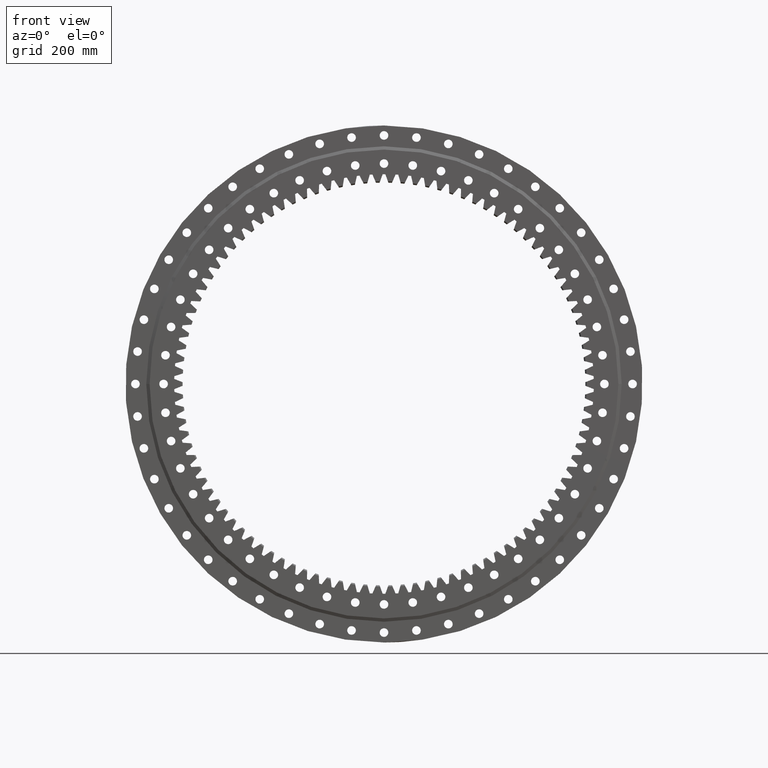
[diagram: clean part render]
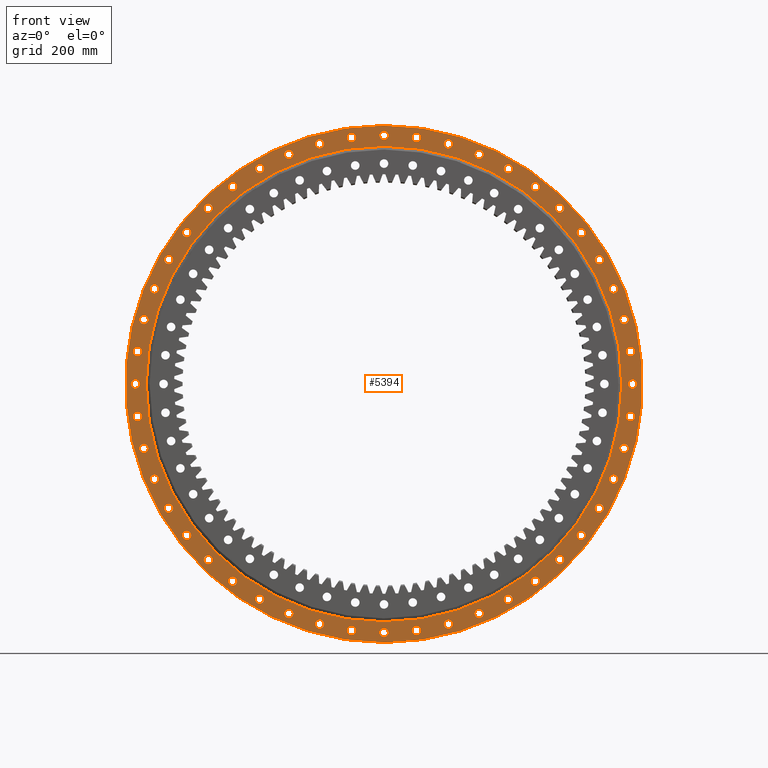
[diagram: same view with one face highlighted and labeled with its STEP entity id]
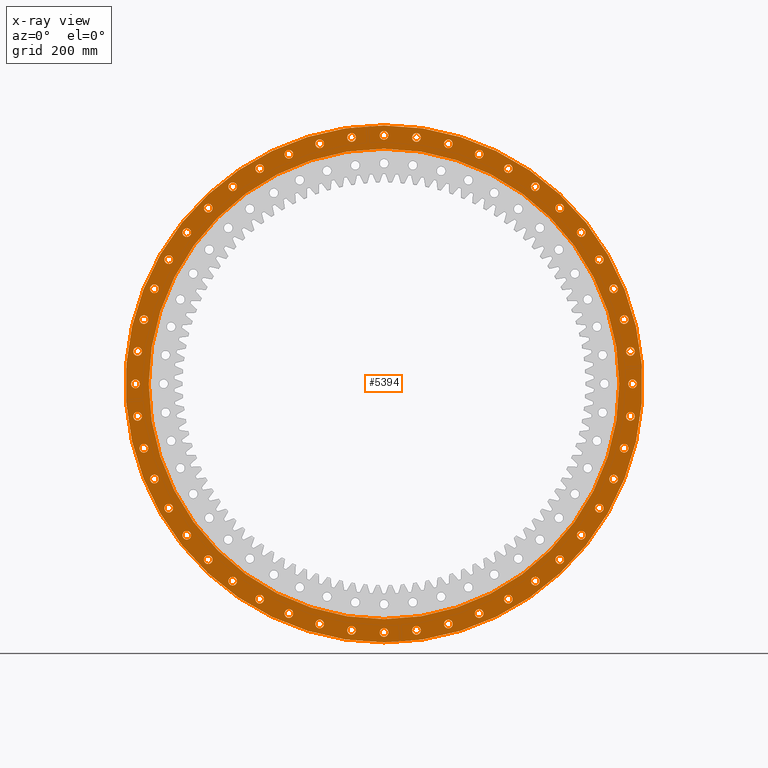
[diagram: x-ray of the same camera — body ghosted, the highlighted face saturated]
A machine part, front view. The second image highlights one B-rep face of the part: STEP entity #5394.
The next image is the same camera in x-ray: the body ghosted, the highlighted face saturated — about 0% of this face is hidden behind the body in this view.
In plain terms, the highlighted planar face has unit normal (-0, 1, 0).
Its self-contained STEP definition (entity closure, byte-faithful):
#33 = DIRECTION ( 'NONE',  ( 1.173697223544192200E-016, -1.000000000000000000, -3.494217355385783800E-017 ) ) ;
#45 = EDGE_LOOP ( 'NONE', ( #16290, #17544 ) ) ;
#139 = CARTESIAN_POINT ( 'NONE',  ( 649.5190528383327500, -39.99999999999975100, -374.9999999999936900 ) ) ;
#201 = EDGE_CURVE ( 'NONE', #11603, #12602, #30120, .T. ) ;
#226 = CARTESIAN_POINT ( 'NONE',  ( -287.0125742738179600, -39.99999999999989300, 705.9096493834647400 ) ) ;
#231 = ORIENTED_EDGE ( 'NONE', *, *, #1069, .F. ) ;
#430 = DIRECTION ( 'NONE',  ( 0.8660254037844354900, 0.0000000000000000000, -0.5000000000000054400 ) ) ;
#480 = CIRCLE ( 'NONE', #14812, 13.00000000000006000 ) ;
#487 = EDGE_CURVE ( 'NONE', #23903, #22460, #22780, .T. ) ;
#511 = FACE_BOUND ( 'NONE', #22450, .T. ) ;
#587 = CIRCLE ( 'NONE', #11814, 13.00000000000001100 ) ;
#600 = DIRECTION ( 'NONE',  ( -0.6087614290087257600, 0.0000000000000000000, -0.7933533402912312800 ) ) ;
#608 = VERTEX_POINT ( 'NONE', #23610 ) ;
#651 = VERTEX_POINT ( 'NONE', #23520 ) ;
#709 = CARTESIAN_POINT ( 'NONE',  ( 374.9999999999913600, -39.99999999999982200, 636.5190528383340100 ) ) ;
#737 = ORIENTED_EDGE ( 'NONE', *, *, #26128, .F. ) ;
#748 = DIRECTION ( 'NONE',  ( 1.000000000000000000, 0.0000000000000000000, -3.546992490074405800E-015 ) ) ;
#815 = DIRECTION ( 'NONE',  ( 1.173697223544192200E-016, -1.000000000000000000, -3.494217355385783800E-017 ) ) ;
#828 = AXIS2_PLACEMENT_3D ( 'NONE', #16413, #16360, #16272 ) ;
#853 = CARTESIAN_POINT ( 'NONE',  ( -543.3300858899075400, -39.99999999999988600, -530.3300858899137900 ) ) ;
#869 = DIRECTION ( 'NONE',  ( 1.173697223544192200E-016, -1.000000000000000000, -3.494217355385783800E-017 ) ) ;
#876 = CARTESIAN_POINT ( 'NONE',  ( -456.5710717565368700, -39.99999999999987900, -595.0150052184292200 ) ) ;
#884 = CARTESIAN_POINT ( 'NONE',  ( -97.89464416503329900, -39.99999999999982900, -730.5836460303585200 ) ) ;
#898 = CIRCLE ( 'NONE', #17446, 12.99999999999996800 ) ;
#905 = EDGE_LOOP ( 'NONE', ( #13851, #14314 ) ) ;
#907 = CIRCLE ( 'NONE', #7056, 12.99999999999995400 ) ;
#919 = VERTEX_POINT ( 'NONE', #17793 ) ;
#923 = EDGE_LOOP ( 'NONE', ( #25007, #25901 ) ) ;
#947 = DIRECTION ( 'NONE',  ( 1.173697223544192200E-016, -1.000000000000000000, -3.494217355385783800E-017 ) ) ;
#959 = VERTEX_POINT ( 'NONE', #16744 ) ;
#985 = AXIS2_PLACEMENT_3D ( 'NONE', #1483, #1456, #1449 ) ;
#1016 = CARTESIAN_POINT ( 'NONE',  ( 287.0125742738079600, -39.99999999999982900, 692.9096493834691700 ) ) ;
#1059 = CARTESIAN_POINT ( 'NONE',  ( 750.0000000000000000, -39.99999999999975100, 8.274054738059845500E-012 ) ) ;
#1069 = EDGE_CURVE ( 'NONE', #7880, #24158, #27505, .T. ) ;
#1077 = CARTESIAN_POINT ( 'NONE',  ( 456.5710717565327200, -39.99999999999980800, 608.0150052184324100 ) ) ;
#1084 = VERTEX_POINT ( 'NONE', #14482 ) ;
#1146 = AXIS2_PLACEMENT_3D ( 'NONE', #1820, #1302, #1219 ) ;
#1153 = CARTESIAN_POINT ( 'NONE',  ( 287.0125742738079600, -39.99999999999982900, 679.9096493834691700 ) ) ;
#1198 = ORIENTED_EDGE ( 'NONE', *, *, #27693, .F. ) ;
#1219 = DIRECTION ( 'NONE',  ( -0.9659258262890707500, 0.0000000000000000000, -0.2588190451025111900 ) ) ;
#1244 = ORIENTED_EDGE ( 'NONE', *, *, #30079, .F. ) ;
#1256 = EDGE_CURVE ( 'NONE', #23893, #4929, #4859, .T. ) ;
#1269 = FACE_BOUND ( 'NONE', #9902, .T. ) ;
#1272 = EDGE_LOOP ( 'NONE', ( #14979, #16435 ) ) ;
#1302 = DIRECTION ( 'NONE',  ( 1.173697223544192200E-016, -1.000000000000000000, -3.494217355385783800E-017 ) ) ;
#1344 = AXIS2_PLACEMENT_3D ( 'NONE', #139, #33, #430 ) ;
#1449 = DIRECTION ( 'NONE',  ( -0.2588190451025071900, 0.0000000000000000000, 0.9659258262890718600 ) ) ;
#1456 = DIRECTION ( 'NONE',  ( 1.173697223544192200E-016, -1.000000000000000000, -3.494217355385783800E-017 ) ) ;
#1483 = CARTESIAN_POINT ( 'NONE',  ( -194.1142838268914400, -39.99999999999988600, 724.4443697168010200 ) ) ;
#1516 = CIRCLE ( 'NONE', #13679, 13.00000000000005700 ) ;
#1522 = CIRCLE ( 'NONE', #1146, 13.00000000000000700 ) ;
#1617 = CARTESIAN_POINT ( 'NONE',  ( -582.0150052184236500, -39.99999999999989300, -456.5710717565440300 ) ) ;
#1648 = CARTESIAN_POINT ( 'NONE',  ( -97.89464416503329900, -39.99999999999982900, -756.5836460303585200 ) ) ;
#1663 = CIRCLE ( 'NONE', #3891, 13.00000000000002100 ) ;
#1666 = CARTESIAN_POINT ( 'NONE',  ( -374.9999999999959100, -39.99999999999986500, -662.5190528383313900 ) ) ;
#1667 = EDGE_CURVE ( 'NONE', #27989, #28717, #3036, .T. ) ;
#1714 = VERTEX_POINT ( 'NONE', #4193 ) ;
#1723 = EDGE_LOOP ( 'NONE', ( #8211, #6127 ) ) ;
#1779 = VERTEX_POINT ( 'NONE', #1889 ) ;
#1787 = VERTEX_POINT ( 'NONE', #1666 ) ;
#1806 = VERTEX_POINT ( 'NONE', #1153 ) ;
#1820 = CARTESIAN_POINT ( 'NONE',  ( -724.4443697168003400, -39.99999999999991500, -194.1142838268939400 ) ) ;
#1838 = DIRECTION ( 'NONE',  ( -0.3826834323650789000, 0.0000000000000000000, 0.9238795325112911800 ) ) ;
#1889 = CARTESIAN_POINT ( 'NONE',  ( 456.5710717565457900, -39.99999999999976600, -582.0150052184221700 ) ) ;
#1891 = CIRCLE ( 'NONE', #10191, 12.99999999999999300 ) ;
#2017 = FACE_BOUND ( 'NONE', #16293, .T. ) ;
#2058 = VERTEX_POINT ( 'NONE', #22474 ) ;
#2137 = VERTEX_POINT ( 'NONE', #14539 ) ;
#2165 = AXIS2_PLACEMENT_3D ( 'NONE', #22158, #22116, #22097 ) ;
#2181 = CIRCLE ( 'NONE', #21957, 13.00000000000004400 ) ;
#2183 = DIRECTION ( 'NONE',  ( 1.173697223544192200E-016, -1.000000000000000000, -3.494217355385783800E-017 ) ) ;
#2186 = VERTEX_POINT ( 'NONE', #12928 ) ;
#2222 = VERTEX_POINT ( 'NONE', #10562 ) ;
#2286 = CIRCLE ( 'NONE', #21154, 12.99999999999996400 ) ;
#2295 = CARTESIAN_POINT ( 'NONE',  ( -608.0150052184236500, -39.99999999999989300, -456.5710717565440300 ) ) ;
#2310 = CARTESIAN_POINT ( 'NONE',  ( -287.0125742738179600, -39.99999999999989300, 692.9096493834647400 ) ) ;
#2323 = EDGE_CURVE ( 'NONE', #27451, #2222, #2603, .T. ) ;
#2377 = FACE_BOUND ( 'NONE', #7462, .T. ) ;
#2424 = CARTESIAN_POINT ( 'NONE',  ( -517.3300858899074200, -39.99999999999988600, -530.3300858899137900 ) ) ;
#2484 = EDGE_CURVE ( 'NONE', #8754, #9350, #17930, .T. ) ;
#2508 = EDGE_CURVE ( 'NONE', #12602, #11603, #23407, .T. ) ;
#2518 = DIRECTION ( 'NONE',  ( 1.000000000000000000, 0.0000000000000000000, -3.546992490074405800E-015 ) ) ;
#2572 = CARTESIAN_POINT ( 'NONE',  ( 750.0000000000000000, -39.99999999999975100, 8.274054738059845500E-012 ) ) ;
#2603 = CIRCLE ( 'NONE', #11756, 12.99999999999998000 ) ;
#2654 = EDGE_CURVE ( 'NONE', #18483, #12143, #25941, .T. ) ;
#2686 = EDGE_LOOP ( 'NONE', ( #22174, #22980 ) ) ;
#2739 = EDGE_LOOP ( 'NONE', ( #9683, #10281 ) ) ;
#2747 = EDGE_CURVE ( 'NONE', #20562, #27934, #22292, .T. ) ;
#2770 = DIRECTION ( 'NONE',  ( -0.7071067811865561200, 0.0000000000000000000, -0.7071067811865390200 ) ) ;
#2778 = EDGE_LOOP ( 'NONE', ( #30699, #231 ) ) ;
#2802 = DIRECTION ( 'NONE',  ( -0.7933533402912292800, 0.0000000000000000000, 0.6087614290087284300 ) ) ;
#2807 = DIRECTION ( 'NONE',  ( 1.173697223544192200E-016, -1.000000000000000000, -3.494217355385783800E-017 ) ) ;
#2828 = CARTESIAN_POINT ( 'NONE',  ( 287.0125742738231300, -39.99999999999978700, -679.9096493834625800 ) ) ;
#2833 = CARTESIAN_POINT ( 'NONE',  ( -530.3300858899075400, -39.99999999999988600, -530.3300858899137900 ) ) ;
#2837 = DIRECTION ( 'NONE',  ( 1.173697223544192200E-016, -1.000000000000000000, -3.494217355385783800E-017 ) ) ;
#2857 = CARTESIAN_POINT ( 'NONE',  ( -595.0150052184275200, -39.99999999999992200, 456.5710717565392500 ) ) ;
#2886 = CARTESIAN_POINT ( 'NONE',  ( -287.0125742738127300, -39.99999999999985800, -705.9096493834670100 ) ) ;
#2950 = DIRECTION ( 'NONE',  ( -0.9914448613738118300, 0.0000000000000000000, -0.1305261922200413900 ) ) ;
#2952 = DIRECTION ( 'NONE',  ( 1.173697223544192200E-016, -1.000000000000000000, -3.494217355385783800E-017 ) ) ;
#2953 = AXIS2_PLACEMENT_3D ( 'NONE', #12867, #12802, #12772 ) ;
#2980 = CARTESIAN_POINT ( 'NONE',  ( -743.5836460303572700, -39.99999999999992900, -97.89464416504226600 ) ) ;
#2987 = ORIENTED_EDGE ( 'NONE', *, *, #26257, .F. ) ;
#3036 = CIRCLE ( 'NONE', #26137, 13.00000000000002000 ) ;
#3064 = DIRECTION ( 'NONE',  ( 0.6087614290087231000, 0.0000000000000000000, 0.7933533402912332800 ) ) ;
#3104 = VERTEX_POINT ( 'NONE', #17784 ) ;
#3136 = AXIS2_PLACEMENT_3D ( 'NONE', #9209, #9105, #9004 ) ;
#3137 = AXIS2_PLACEMENT_3D ( 'NONE', #19658, #19565, #19363 ) ;
#3148 = AXIS2_PLACEMENT_3D ( 'NONE', #28964, #28938, #28932 ) ;
#3152 = FACE_BOUND ( 'NONE', #26608, .T. ) ;
#3154 = VERTEX_POINT ( 'NONE', #16870 ) ;
#3162 = VERTEX_POINT ( 'NONE', #17884 ) ;
#3181 = CARTESIAN_POINT ( 'NONE',  ( 194.1142838268965000, -39.99999999999979400, -737.4443697167997700 ) ) ;
#3184 = DIRECTION ( 'NONE',  ( 1.173697223544192200E-016, -1.000000000000000000, -3.494217355385783800E-017 ) ) ;
#3192 = AXIS2_PLACEMENT_3D ( 'NONE', #18816, #18752, #18605 ) ;
#3390 = CARTESIAN_POINT ( 'NONE',  ( 456.5710717565327200, -39.99999999999980800, 595.0150052184324100 ) ) ;
#3392 = AXIS2_PLACEMENT_3D ( 'NONE', #11721, #11624, #10903 ) ;
#3404 = ORIENTED_EDGE ( 'NONE', *, *, #15289, .F. ) ;
#3450 = VERTEX_POINT ( 'NONE', #11238 ) ;
#3490 = EDGE_LOOP ( 'NONE', ( #5351, #7254 ) ) ;
#3501 = EDGE_LOOP ( 'NONE', ( #21984, #22424 ) ) ;
#3505 = DIRECTION ( 'NONE',  ( 0.6087614290087231000, 0.0000000000000000000, 0.7933533402912332800 ) ) ;
#3506 = DIRECTION ( 'NONE',  ( 0.9659258262890693100, 0.0000000000000000000, 0.2588190451025171900 ) ) ;
#3606 = DIRECTION ( 'NONE',  ( 1.173697223544192200E-016, -1.000000000000000000, -3.494217355385783800E-017 ) ) ;
#3607 = DIRECTION ( 'NONE',  ( 1.173697223544192200E-016, -1.000000000000000000, -3.494217355385783800E-017 ) ) ;
#3612 = CARTESIAN_POINT ( 'NONE',  ( 724.4443697167990900, -39.99999999999976600, 194.1142838268990300 ) ) ;
#3648 = CARTESIAN_POINT ( 'NONE',  ( 287.0125742738231300, -39.99999999999978700, -705.9096493834625800 ) ) ;
#3662 = ORIENTED_EDGE ( 'NONE', *, *, #11509, .F. ) ;
#3696 = CIRCLE ( 'NONE', #18559, 13.00000000000003600 ) ;
#3710 = CARTESIAN_POINT ( 'NONE',  ( 456.5710717565327200, -39.99999999999980800, 595.0150052184324100 ) ) ;
#3831 = CARTESIAN_POINT ( 'NONE',  ( 5.653940886452980100E-012, -39.99999999999981500, -763.0000000000000000 ) ) ;
#3873 = FACE_BOUND ( 'NONE', #2778, .T. ) ;
#3877 = EDGE_LOOP ( 'NONE', ( #19130, #19887 ) ) ;
#3889 = AXIS2_PLACEMENT_3D ( 'NONE', #12525, #12481, #12464 ) ;
#3891 = AXIS2_PLACEMENT_3D ( 'NONE', #17160, #17138, #17129 ) ;
#3922 = EDGE_CURVE ( 'NONE', #6979, #7012, #20385, .T. ) ;
#3937 = CIRCLE ( 'NONE', #23851, 13.00000000000001100 ) ;
#3950 = AXIS2_PLACEMENT_3D ( 'NONE', #27063, #27296, #27462 ) ;
#3987 = CARTESIAN_POINT ( 'NONE',  ( 743.5836460303588600, -39.99999999999975100, -97.89464416503071200 ) ) ;
#4033 = VERTEX_POINT ( 'NONE', #1617 ) ;
#4034 = DIRECTION ( 'NONE',  ( -0.1305261922200382200, 0.0000000000000000000, 0.9914448613738121600 ) ) ;
#4059 = DIRECTION ( 'NONE',  ( 1.173697223544192200E-016, -1.000000000000000000, -3.494217355385783800E-017 ) ) ;
#4063 = CARTESIAN_POINT ( 'NONE',  ( 97.89464416502811200, -39.99999999999985800, 730.5836460303592000 ) ) ;
#4089 = DIRECTION ( 'NONE',  ( -0.9659258262890654300, 0.0000000000000000000, 0.2588190451025313400 ) ) ;
#4095 = CIRCLE ( 'NONE', #21708, 12.99999999999997500 ) ;
#4096 = CARTESIAN_POINT ( 'NONE',  ( -97.89464416503965100, -39.99999999999988600, 743.5836460303576100 ) ) ;
#4115 = AXIS2_PLACEMENT_3D ( 'NONE', #24539, #24516, #24512 ) ;
#4116 = ORIENTED_EDGE ( 'NONE', *, *, #10531, .F. ) ;
#4117 = DIRECTION ( 'NONE',  ( 1.173697223544192200E-016, -1.000000000000000000, -3.494217355385783800E-017 ) ) ;
#4193 = CARTESIAN_POINT ( 'NONE',  ( 456.5710717565457900, -39.99999999999976600, -608.0150052184221700 ) ) ;
#4258 = DIRECTION ( 'NONE',  ( -0.6087614290087110000, 0.0000000000000000000, 0.7933533402912427100 ) ) ;
#4282 = AXIS2_PLACEMENT_3D ( 'NONE', #3612, #3607, #3506 ) ;
#4289 = CIRCLE ( 'NONE', #9148, 13.00000000000002100 ) ;
#4359 = EDGE_CURVE ( 'NONE', #1714, #1779, #9183, .T. ) ;
#4391 = AXIS2_PLACEMENT_3D ( 'NONE', #23627, #9449, #25972 ) ;
#4424 = CARTESIAN_POINT ( 'NONE',  ( -724.4443697168018200, -39.99999999999992900, 194.1142838268880600 ) ) ;
#4522 = AXIS2_PLACEMENT_3D ( 'NONE', #28356, #30150, #30712 ) ;
#4553 = EDGE_LOOP ( 'NONE', ( #26712, #27785 ) ) ;
#4601 = EDGE_CURVE ( 'NONE', #18978, #18395, #3937, .T. ) ;
#4602 = FACE_BOUND ( 'NONE', #11811, .T. ) ;
#4605 = VERTEX_POINT ( 'NONE', #5991 ) ;
#4725 = EDGE_CURVE ( 'NONE', #18942, #18599, #20711, .T. ) ;
#4761 = VERTEX_POINT ( 'NONE', #853 ) ;
#4830 = CIRCLE ( 'NONE', #15436, 780.0000000000000000 ) ;
#4859 = CIRCLE ( 'NONE', #15767, 13.00000000000002100 ) ;
#4929 = VERTEX_POINT ( 'NONE', #27264 ) ;
#4947 = EDGE_CURVE ( 'NONE', #651, #11187, #15569, .T. ) ;
#5030 = EDGE_CURVE ( 'NONE', #4033, #25547, #29846, .T. ) ;
#5087 = DIRECTION ( 'NONE',  ( 0.2588190451025151900, 0.0000000000000000000, -0.9659258262890697600 ) ) ;
#5098 = VERTEX_POINT ( 'NONE', #24052 ) ;
#5125 = CIRCLE ( 'NONE', #3136, 13.00000000000001100 ) ;
#5149 = CIRCLE ( 'NONE', #4391, 12.99999999999996300 ) ;
#5153 = EDGE_CURVE ( 'NONE', #27365, #30587, #14410, .T. ) ;
#5154 = CARTESIAN_POINT ( 'NONE',  ( -730.5836460303572700, -39.99999999999992900, -97.89464416504226600 ) ) ;
#5170 = VERTEX_POINT ( 'NONE', #22567 ) ;
#5181 = CARTESIAN_POINT ( 'NONE',  ( -756.5836460303572700, -39.99999999999992900, -97.89464416504226600 ) ) ;
#5206 = CIRCLE ( 'NONE', #14850, 13.00000000000001400 ) ;
#5222 = DIRECTION ( 'NONE',  ( -0.7071067811865390200, 0.0000000000000000000, 0.7071067811865561200 ) ) ;
#5252 = DIRECTION ( 'NONE',  ( 1.173697223544192200E-016, -1.000000000000000000, -3.494217355385783800E-017 ) ) ;
#5258 = CARTESIAN_POINT ( 'NONE',  ( -530.3300858899119700, -39.99999999999992200, 530.3300858899093600 ) ) ;
#5260 = CIRCLE ( 'NONE', #10040, 12.99999999999999300 ) ;
#5265 = EDGE_LOOP ( 'NONE', ( #3662, #5901 ) ) ;
#5281 = AXIS2_PLACEMENT_3D ( 'NONE', #30105, #30049, #30074 ) ;
#5308 = DIRECTION ( 'NONE',  ( -0.7071067811865390200, 0.0000000000000000000, 0.7071067811865561200 ) ) ;
#5311 = CARTESIAN_POINT ( 'NONE',  ( 743.5836460303588600, -39.99999999999975100, -97.89464416503071200 ) ) ;
#5315 = EDGE_LOOP ( 'NONE', ( #17259, #17721 ) ) ;
#5343 = CIRCLE ( 'NONE', #25412, 13.00000000000004600 ) ;
#5346 = FACE_BOUND ( 'NONE', #45, .T. ) ;
#5351 = ORIENTED_EDGE ( 'NONE', *, *, #6085, .F. ) ;
#5394 = ADVANCED_FACE ( 'NONE', ( #22502, #27251, #14767, #21023, #8356, #9120, #2017, #26512, #20284, #14044, #7592, #1269, #25758, #19555, #13286, #6832, #511, #25046, #18817, #12514, #6109, #30533, #24307, #18115, #11759, #5346, #29822, #23568, #17369, #11018, #4602, #29078, #22843, #16619, #10247, #3873, #28326, #22117, #15889, #9498, #3152, #27595, #21367, #15129, #8731, #2377, #26871, #20651, #14379, #7952 ), #18917, .F. ) ;
#5396 = DIRECTION ( 'NONE',  ( -0.8660254037844336000, 0.0000000000000000000, 0.5000000000000086600 ) ) ;
#5430 = DIRECTION ( 'NONE',  ( 1.173697223544192200E-016, -1.000000000000000000, -3.494217355385783800E-017 ) ) ;
#5433 = CARTESIAN_POINT ( 'NONE',  ( 97.89464416502811200, -39.99999999999985800, 743.5836460303592000 ) ) ;
#5453 = CARTESIAN_POINT ( 'NONE',  ( -649.5190528383300300, -39.99999999999992900, 374.9999999999981200 ) ) ;
#5497 = VERTEX_POINT ( 'NONE', #16891 ) ;
#5668 = EDGE_CURVE ( 'NONE', #20408, #22874, #19940, .T. ) ;
#5705 = AXIS2_PLACEMENT_3D ( 'NONE', #25503, #25442, #25247 ) ;
#5709 = DIRECTION ( 'NONE',  ( -1.000000000000000000, 0.0000000000000000000, 1.052995516776065800E-014 ) ) ;
#5740 = CARTESIAN_POINT ( 'NONE',  ( -750.0000000000000000, -39.99999999999992900, -3.039628103679454200E-012 ) ) ;
#5749 = DIRECTION ( 'NONE',  ( 1.173697223544192200E-016, -1.000000000000000000, -3.494217355385783800E-017 ) ) ;
#5833 = EDGE_CURVE ( 'NONE', #29498, #12171, #26517, .T. ) ;
#5901 = ORIENTED_EDGE ( 'NONE', *, *, #24658, .F. ) ;
#5991 = CARTESIAN_POINT ( 'NONE',  ( 737.4443697167990900, -39.99999999999976600, 194.1142838268990300 ) ) ;
#6085 = EDGE_CURVE ( 'NONE', #3450, #14654, #15135, .T. ) ;
#6109 = FACE_BOUND ( 'NONE', #11314, .T. ) ;
#6124 = CIRCLE ( 'NONE', #20974, 12.99999999999999300 ) ;
#6127 = ORIENTED_EDGE ( 'NONE', *, *, #25166, .F. ) ;
#6141 = AXIS2_PLACEMENT_3D ( 'NONE', #1016, #869, #30708 ) ;
#6258 = AXIS2_PLACEMENT_3D ( 'NONE', #22031, #21009, #21958 ) ;
#6262 = VERTEX_POINT ( 'NONE', #2424 ) ;
#6334 = CIRCLE ( 'NONE', #12195, 13.00000000000002100 ) ;
#6358 = DIRECTION ( 'NONE',  ( 0.9914448613738098300, 0.0000000000000000000, -0.1305261922200550200 ) ) ;
#6530 = CIRCLE ( 'NONE', #16045, 12.99999999999997500 ) ;
#6684 = EDGE_CURVE ( 'NONE', #8472, #8506, #11196, .T. ) ;
#6693 = AXIS2_PLACEMENT_3D ( 'NONE', #21090, #21055, #20894 ) ;
#6730 = EDGE_CURVE ( 'NONE', #22663, #22550, #21550, .T. ) ;
#6742 = EDGE_CURVE ( 'NONE', #18599, #18942, #14565, .T. ) ;
#6771 = EDGE_LOOP ( 'NONE', ( #12437, #13290 ) ) ;
#6782 = CIRCLE ( 'NONE', #5705, 13.00000000000003000 ) ;
#6820 = CARTESIAN_POINT ( 'NONE',  ( 97.89464416502811200, -39.99999999999985800, 756.5836460303592000 ) ) ;
#6832 = FACE_BOUND ( 'NONE', #18619, .T. ) ;
#6885 = DIRECTION ( 'NONE',  ( -0.9238795325112825200, 0.0000000000000000000, 0.3826834323651001100 ) ) ;
#6891 = DIRECTION ( 'NONE',  ( 1.173697223544192200E-016, -1.000000000000000000, -3.494217355385783800E-017 ) ) ;
#6916 = CARTESIAN_POINT ( 'NONE',  ( -692.9096493834662200, -39.99999999999992900, 287.0125742738148300 ) ) ;
#6965 = DIRECTION ( 'NONE',  ( 1.173697223544192200E-016, -1.000000000000000000, -3.494217355385783800E-017 ) ) ;
#6979 = VERTEX_POINT ( 'NONE', #5181 ) ;
#7012 = VERTEX_POINT ( 'NONE', #5154 ) ;
#7056 = AXIS2_PLACEMENT_3D ( 'NONE', #16488, #16483, #16447 ) ;
#7073 = CARTESIAN_POINT ( 'NONE',  ( 194.1142838268965000, -39.99999999999979400, -724.4443697167996600 ) ) ;
#7146 = CIRCLE ( 'NONE', #3137, 13.00000000000002700 ) ;
#7160 = DIRECTION ( 'NONE',  ( -0.9914448613738090500, 0.0000000000000000000, 0.1305261922200623700 ) ) ;
#7169 = DIRECTION ( 'NONE',  ( 1.173697223544192200E-016, -1.000000000000000000, -3.494217355385783800E-017 ) ) ;
#7190 = EDGE_LOOP ( 'NONE', ( #20528, #21008 ) ) ;
#7254 = ORIENTED_EDGE ( 'NONE', *, *, #22236, .F. ) ;
#7324 = CIRCLE ( 'NONE', #6693, 12.99999999999999800 ) ;
#7352 = AXIS2_PLACEMENT_3D ( 'NONE', #14650, #14048, #5308 ) ;
#7364 = CIRCLE ( 'NONE', #9364, 13.00000000000003200 ) ;
#7380 = CARTESIAN_POINT ( 'NONE',  ( 287.0125742738231300, -39.99999999999978700, -692.9096493834625800 ) ) ;
#7419 = CIRCLE ( 'NONE', #12210, 13.00000000000003600 ) ;
#7420 = VERTEX_POINT ( 'NONE', #25083 ) ;
#7462 = EDGE_LOOP ( 'NONE', ( #18261, #18629 ) ) ;
#7508 = ORIENTED_EDGE ( 'NONE', *, *, #10104, .F. ) ;
#7566 = CIRCLE ( 'NONE', #13026, 12.99999999999998000 ) ;
#7592 = FACE_BOUND ( 'NONE', #7596, .T. ) ;
#7596 = EDGE_LOOP ( 'NONE', ( #16884, #17296 ) ) ;
#7659 = VERTEX_POINT ( 'NONE', #20168 ) ;
#7760 = VERTEX_POINT ( 'NONE', #17800 ) ;
#7826 = DIRECTION ( 'NONE',  ( 0.1305261922200518500, 0.0000000000000000000, 0.9914448613738102700 ) ) ;
#7862 = EDGE_LOOP ( 'NONE', ( #12472, #14317 ) ) ;
#7872 = ORIENTED_EDGE ( 'NONE', *, *, #12137, .F. ) ;
#7880 = VERTEX_POINT ( 'NONE', #15872 ) ;
#7952 = FACE_OUTER_BOUND ( 'NONE', #16526, .T. ) ;
#7956 = CIRCLE ( 'NONE', #22443, 12.99999999999999600 ) ;
#8188 = CARTESIAN_POINT ( 'NONE',  ( -375.0000000000011400, -39.99999999999990100, 636.5190528383283200 ) ) ;
#8211 = ORIENTED_EDGE ( 'NONE', *, *, #15833, .F. ) ;
#8252 = CARTESIAN_POINT ( 'NONE',  ( 194.1142838268965000, -39.99999999999979400, -711.4443697167996600 ) ) ;
#8356 = FACE_BOUND ( 'NONE', #1723, .T. ) ;
#8402 = CARTESIAN_POINT ( 'NONE',  ( -97.89464416503965100, -39.99999999999988600, 756.5836460303576100 ) ) ;
#8469 = CIRCLE ( 'NONE', #30329, 13.00000000000004300 ) ;
#8472 = VERTEX_POINT ( 'NONE', #3648 ) ;
#8506 = VERTEX_POINT ( 'NONE', #2828 ) ;
#8620 = ORIENTED_EDGE ( 'NONE', *, *, #16771, .F. ) ;
#8731 = FACE_BOUND ( 'NONE', #5315, .T. ) ;
#8754 = VERTEX_POINT ( 'NONE', #28259 ) ;
#8794 = CARTESIAN_POINT ( 'NONE',  ( -97.89464416503965100, -39.99999999999988600, 730.5836460303576100 ) ) ;
#8802 = CARTESIAN_POINT ( 'NONE',  ( 737.4443697168034100, -39.99999999999975100, -194.1142838268830000 ) ) ;
#8838 = DIRECTION ( 'NONE',  ( -7.038473828917531600E-015, 0.0000000000000000000, -1.000000000000000000 ) ) ;
#8856 = EDGE_CURVE ( 'NONE', #14116, #15178, #19998, .T. ) ;
#8874 = DIRECTION ( 'NONE',  ( 1.173697223544192200E-016, -1.000000000000000000, -3.494217355385783800E-017 ) ) ;
#8898 = CARTESIAN_POINT ( 'NONE',  ( 5.661536209763827100E-012, -39.99999999999981500, -750.0000000000000000 ) ) ;
#8960 = CIRCLE ( 'NONE', #20151, 12.99999999999999500 ) ;
#8961 = CARTESIAN_POINT ( 'NONE',  ( -456.5710717565419300, -39.99999999999991500, 582.0150052184252400 ) ) ;
#8968 = VERTEX_POINT ( 'NONE', #15070 ) ;
#8977 = AXIS2_PLACEMENT_3D ( 'NONE', #876, #815, #600 ) ;
#8993 = ORIENTED_EDGE ( 'NONE', *, *, #1256, .F. ) ;
#9004 = DIRECTION ( 'NONE',  ( -1.000000000000000000, 0.0000000000000000000, 1.052995516776065800E-014 ) ) ;
#9105 = DIRECTION ( 'NONE',  ( 1.173697223544192200E-016, -1.000000000000000000, -3.494217355385783800E-017 ) ) ;
#9110 = AXIS2_PLACEMENT_3D ( 'NONE', #2857, #2837, #2802 ) ;
#9120 = FACE_BOUND ( 'NONE', #18628, .T. ) ;
#9148 = AXIS2_PLACEMENT_3D ( 'NONE', #7073, #6965, #5087 ) ;
#9159 = DIRECTION ( 'NONE',  ( 0.7071067811865474600, 0.0000000000000000000, 0.7071067811865474600 ) ) ;
#9163 = AXIS2_PLACEMENT_3D ( 'NONE', #25368, #25349, #25342 ) ;
#9183 = CIRCLE ( 'NONE', #3192, 13.00000000000003200 ) ;
#9194 = DIRECTION ( 'NONE',  ( 1.173697223544192200E-016, -1.000000000000000000, -3.494217355385783800E-017 ) ) ;
#9196 = DIRECTION ( 'NONE',  ( 1.173697223544192200E-016, -1.000000000000000000, -3.494217355385783800E-017 ) ) ;
#9200 = CARTESIAN_POINT ( 'NONE',  ( 530.3300858899037800, -39.99999999999980100, 530.3300858899175400 ) ) ;
#9209 = CARTESIAN_POINT ( 'NONE',  ( -750.0000000000000000, -39.99999999999992900, -3.039628103679454200E-012 ) ) ;
#9211 = VERTEX_POINT ( 'NONE', #3181 ) ;
#9259 = CIRCLE ( 'NONE', #17558, 13.00000000000001100 ) ;
#9278 = CARTESIAN_POINT ( 'NONE',  ( 756.5836460303588600, -39.99999999999975100, -97.89464416503071200 ) ) ;
#9350 = VERTEX_POINT ( 'NONE', #28230 ) ;
#9364 = AXIS2_PLACEMENT_3D ( 'NONE', #30403, #30208, #30018 ) ;
#9415 = CIRCLE ( 'NONE', #3950, 13.00000000000005500 ) ;
#9449 = DIRECTION ( 'NONE',  ( 1.173697223544192200E-016, -1.000000000000000000, -3.494217355385783800E-017 ) ) ;
#9452 = ORIENTED_EDGE ( 'NONE', *, *, #23831, .F. ) ;
#9465 = CARTESIAN_POINT ( 'NONE',  ( 582.0150052184207000, -39.99999999999978700, 456.5710717565478400 ) ) ;
#9498 = FACE_BOUND ( 'NONE', #2739, .T. ) ;
#9508 = CARTESIAN_POINT ( 'NONE',  ( 730.5836460303565900, -39.99999999999975100, 97.89464416504709700 ) ) ;
#9589 = EDGE_LOOP ( 'NONE', ( #17978, #17475 ) ) ;
#9590 = DIRECTION ( 'NONE',  ( 0.2588190451025211800, 0.0000000000000000000, 0.9659258262890680900 ) ) ;
#9637 = VERTEX_POINT ( 'NONE', #23364 ) ;
#9647 = DIRECTION ( 'NONE',  ( 1.173697223544192200E-016, -1.000000000000000000, -3.494217355385783800E-017 ) ) ;
#9653 = CARTESIAN_POINT ( 'NONE',  ( 194.1142838268804400, -39.99999999999985100, 724.4443697168038600 ) ) ;
#9659 = CARTESIAN_POINT ( 'NONE',  ( 194.1142838268804400, -39.99999999999985100, 711.4443697168037500 ) ) ;
#9683 = ORIENTED_EDGE ( 'NONE', *, *, #18181, .F. ) ;
#9696 = EDGE_CURVE ( 'NONE', #1787, #2137, #28762, .T. ) ;
#9730 = DIRECTION ( 'NONE',  ( 0.9659258262890676500, 0.0000000000000000000, -0.2588190451025231800 ) ) ;
#9752 = CIRCLE ( 'NONE', #2165, 12.99999999999995400 ) ;
#9753 = DIRECTION ( 'NONE',  ( 1.173697223544192200E-016, -1.000000000000000000, -3.494217355385783800E-017 ) ) ;
#9763 = CARTESIAN_POINT ( 'NONE',  ( 724.4443697168034100, -39.99999999999975100, -194.1142838268830000 ) ) ;
#9853 = DIRECTION ( 'NONE',  ( 0.3826834323650825100, 0.0000000000000000000, -0.9238795325112897400 ) ) ;
#9870 = EDGE_CURVE ( 'NONE', #15178, #14116, #29112, .T. ) ;
#9884 = ORIENTED_EDGE ( 'NONE', *, *, #26869, .F. ) ;
#9902 = EDGE_LOOP ( 'NONE', ( #18298, #18717 ) ) ;
#9922 = CARTESIAN_POINT ( 'NONE',  ( -737.4443697168003400, -39.99999999999991500, -194.1142838268939100 ) ) ;
#9951 = EDGE_LOOP ( 'NONE', ( #18018, #18593 ) ) ;
#9959 = VERTEX_POINT ( 'NONE', #17768 ) ;
#10000 = EDGE_CURVE ( 'NONE', #12199, #9211, #1663, .T. ) ;
#10040 = AXIS2_PLACEMENT_3D ( 'NONE', #17394, #17261, #17082 ) ;
#10058 = EDGE_CURVE ( 'NONE', #25589, #1084, #907, .T. ) ;
#10104 = EDGE_CURVE ( 'NONE', #26059, #3104, #11404, .T. ) ;
#10191 = AXIS2_PLACEMENT_3D ( 'NONE', #21441, #21399, #21337 ) ;
#10247 = FACE_BOUND ( 'NONE', #29461, .T. ) ;
#10281 = ORIENTED_EDGE ( 'NONE', *, *, #22750, .F. ) ;
#10340 = EDGE_CURVE ( 'NONE', #13260, #25024, #30538, .T. ) ;
#10385 = VERTEX_POINT ( 'NONE', #9922 ) ;
#10389 = VERTEX_POINT ( 'NONE', #9659 ) ;
#10398 = EDGE_LOOP ( 'NONE', ( #15696, #16561 ) ) ;
#10417 = DIRECTION ( 'NONE',  ( 0.9914448613738109400, 0.0000000000000000000, 0.1305261922200476900 ) ) ;
#10490 = DIRECTION ( 'NONE',  ( 1.173697223544192200E-016, -1.000000000000000000, -3.494217355385783800E-017 ) ) ;
#10510 = DIRECTION ( 'NONE',  ( 0.8660254037844413700, 0.0000000000000000000, 0.4999999999999953400 ) ) ;
#10525 = CARTESIAN_POINT ( 'NONE',  ( 743.5836460303567000, -39.99999999999975100, 97.89464416504709700 ) ) ;
#10531 = EDGE_CURVE ( 'NONE', #19760, #5170, #7956, .T. ) ;
#10541 = DIRECTION ( 'NONE',  ( 1.173697223544192200E-016, -1.000000000000000000, -3.494217355385783800E-017 ) ) ;
#10547 = CARTESIAN_POINT ( 'NONE',  ( 649.5190528383244600, -39.99999999999978000, 375.0000000000079600 ) ) ;
#10562 = CARTESIAN_POINT ( 'NONE',  ( 456.5710717565327200, -39.99999999999980800, 582.0150052184324100 ) ) ;
#10609 = ORIENTED_EDGE ( 'NONE', *, *, #5668, .F. ) ;
#10662 = DIRECTION ( 'NONE',  ( 0.9238795325112881800, 0.0000000000000000000, 0.3826834323650861700 ) ) ;
#10666 = CIRCLE ( 'NONE', #29149, 13.00000000000002100 ) ;
#10695 = DIRECTION ( 'NONE',  ( 1.173697223544192200E-016, -1.000000000000000000, -3.494217355385783800E-017 ) ) ;
#10702 = CARTESIAN_POINT ( 'NONE',  ( 692.9096493834615600, -39.99999999999976600, 287.0125742738255200 ) ) ;
#10760 = CARTESIAN_POINT ( 'NONE',  ( 679.9096493834681500, -39.99999999999975100, -287.0125742738104000 ) ) ;
#10773 = EDGE_CURVE ( 'NONE', #4761, #6262, #20999, .T. ) ;
#10819 = DIRECTION ( 'NONE',  ( 0.9238795325112881800, 0.0000000000000000000, 0.3826834323650861700 ) ) ;
#10860 = DIRECTION ( 'NONE',  ( 1.173697223544192200E-016, -1.000000000000000000, -3.494217355385783800E-017 ) ) ;
#10865 = CIRCLE ( 'NONE', #29132, 12.99999999999997500 ) ;
#10884 = CARTESIAN_POINT ( 'NONE',  ( 692.9096493834615600, -39.99999999999976600, 287.0125742738255200 ) ) ;
#10886 = CIRCLE ( 'NONE', #30720, 13.00000000000000900 ) ;
#10903 = DIRECTION ( 'NONE',  ( 0.7071067811865474600, 0.0000000000000000000, 0.7071067811865474600 ) ) ;
#10943 = CIRCLE ( 'NONE', #22088, 12.99999999999995600 ) ;
#11018 = FACE_BOUND ( 'NONE', #2686, .T. ) ;
#11187 = VERTEX_POINT ( 'NONE', #11783 ) ;
#11196 = CIRCLE ( 'NONE', #20602, 13.00000000000001400 ) ;
#11211 = ORIENTED_EDGE ( 'NONE', *, *, #17232, .F. ) ;
#11217 = ORIENTED_EDGE ( 'NONE', *, *, #10340, .F. ) ;
#11218 = CARTESIAN_POINT ( 'NONE',  ( -194.1142838268855000, -39.99999999999983700, -711.4443697168025000 ) ) ;
#11238 = CARTESIAN_POINT ( 'NONE',  ( -636.5190528383300300, -39.99999999999992900, 374.9999999999981200 ) ) ;
#11314 = EDGE_LOOP ( 'NONE', ( #30002, #1198 ) ) ;
#11325 = CARTESIAN_POINT ( 'NONE',  ( 737.0000000000000000, -39.99999999999975100, 8.277940821674668300E-012 ) ) ;
#11335 = AXIS2_PLACEMENT_3D ( 'NONE', #10884, #10860, #10819 ) ;
#11347 = CARTESIAN_POINT ( 'NONE',  ( 517.3300858899037800, -39.99999999999980100, 530.3300858899175400 ) ) ;
#11383 = CIRCLE ( 'NONE', #3889, 13.00000000000000900 ) ;
#11404 = CIRCLE ( 'NONE', #13561, 13.00000000000003200 ) ;
#11409 = DIRECTION ( 'NONE',  ( 0.2588190451025211800, 0.0000000000000000000, 0.9659258262890680900 ) ) ;
#11436 = VERTEX_POINT ( 'NONE', #27702 ) ;
#11457 = CARTESIAN_POINT ( 'NONE',  ( -456.5710717565368700, -39.99999999999987900, -608.0150052184292200 ) ) ;
#11509 = EDGE_CURVE ( 'NONE', #12942, #12636, #6782, .T. ) ;
#11566 = ORIENTED_EDGE ( 'NONE', *, *, #23478, .F. ) ;
#11603 = VERTEX_POINT ( 'NONE', #22660 ) ;
#11624 = DIRECTION ( 'NONE',  ( 1.173697223544192200E-016, -1.000000000000000000, -3.494217355385783800E-017 ) ) ;
#11721 = CARTESIAN_POINT ( 'NONE',  ( 530.3300858899037800, -39.99999999999980100, 530.3300858899175400 ) ) ;
#11756 = AXIS2_PLACEMENT_3D ( 'NONE', #3390, #3184, #3064 ) ;
#11759 = FACE_BOUND ( 'NONE', #7862, .T. ) ;
#11783 = CARTESIAN_POINT ( 'NONE',  ( -679.9096493834637200, -39.99999999999991500, -287.0125742738204100 ) ) ;
#11811 = EDGE_LOOP ( 'NONE', ( #24184, #24685 ) ) ;
#11814 = AXIS2_PLACEMENT_3D ( 'NONE', #1059, #947, #748 ) ;
#11950 = ORIENTED_EDGE ( 'NONE', *, *, #22625, .F. ) ;
#12004 = EDGE_CURVE ( 'NONE', #18582, #21854, #14689, .T. ) ;
#12119 = DIRECTION ( 'NONE',  ( 1.173697223544192200E-016, -1.000000000000000000, -3.494217355385783800E-017 ) ) ;
#12137 = EDGE_CURVE ( 'NONE', #19315, #15685, #23501, .T. ) ;
#12143 = VERTEX_POINT ( 'NONE', #9508 ) ;
#12160 = DIRECTION ( 'NONE',  ( -0.6087614290087110000, 0.0000000000000000000, 0.7933533402912427100 ) ) ;
#12171 = VERTEX_POINT ( 'NONE', #8802 ) ;
#12172 = CARTESIAN_POINT ( 'NONE',  ( -456.5710717565419300, -39.99999999999991500, 608.0150052184252400 ) ) ;
#12195 = AXIS2_PLACEMENT_3D ( 'NONE', #26596, #25912, #26491 ) ;
#12199 = VERTEX_POINT ( 'NONE', #8252 ) ;
#12210 = AXIS2_PLACEMENT_3D ( 'NONE', #10702, #10695, #10662 ) ;
#12226 = CARTESIAN_POINT ( 'NONE',  ( 194.1142838268804400, -39.99999999999985100, 724.4443697168038600 ) ) ;
#12246 = CARTESIAN_POINT ( 'NONE',  ( -1.088864699527416700E-011, -39.99999999999987200, 763.0000000000000000 ) ) ;
#12379 = DIRECTION ( 'NONE',  ( 1.173697223544192200E-016, -1.000000000000000000, -3.494217355385783800E-017 ) ) ;
#12412 = AXIS2_PLACEMENT_3D ( 'NONE', #14532, #14491, #14460 ) ;
#12414 = CARTESIAN_POINT ( 'NONE',  ( -456.5710717565419300, -39.99999999999991500, 595.0150052184252400 ) ) ;
#12437 = ORIENTED_EDGE ( 'NONE', *, *, #487, .F. ) ;
#12464 = DIRECTION ( 'NONE',  ( -0.8660254037844336000, 0.0000000000000000000, 0.5000000000000086600 ) ) ;
#12472 = ORIENTED_EDGE ( 'NONE', *, *, #27608, .F. ) ;
#12474 = EDGE_LOOP ( 'NONE', ( #2987, #4116 ) ) ;
#12481 = DIRECTION ( 'NONE',  ( 1.173697223544192200E-016, -1.000000000000000000, -3.494217355385783800E-017 ) ) ;
#12500 = ORIENTED_EDGE ( 'NONE', *, *, #25079, .F. ) ;
#12514 = FACE_BOUND ( 'NONE', #13983, .T. ) ;
#12525 = CARTESIAN_POINT ( 'NONE',  ( -649.5190528383300300, -39.99999999999992900, 374.9999999999981200 ) ) ;
#12575 = AXIS2_PLACEMENT_3D ( 'NONE', #13912, #13906, #13871 ) ;
#12602 = VERTEX_POINT ( 'NONE', #19281 ) ;
#12636 = VERTEX_POINT ( 'NONE', #15635 ) ;
#12772 = DIRECTION ( 'NONE',  ( 5.551115123128011200E-017, 0.0000000000000000000, 1.000000000000000000 ) ) ;
#12773 = AXIS2_PLACEMENT_3D ( 'NONE', #4424, #4117, #4089 ) ;
#12802 = DIRECTION ( 'NONE',  ( 1.173697223544192200E-016, -1.000000000000000000, -3.494217355385783800E-017 ) ) ;
#12843 = EDGE_CURVE ( 'NONE', #10385, #959, #1522, .T. ) ;
#12867 = CARTESIAN_POINT ( 'NONE',  ( -1.088936864024017300E-011, -39.99999999999987200, 750.0000000000000000 ) ) ;
#12877 = CARTESIAN_POINT ( 'NONE',  ( 662.5190528383244600, -39.99999999999978000, 375.0000000000079600 ) ) ;
#12887 = DIRECTION ( 'NONE',  ( 0.7071067811865432400, 0.0000000000000000000, -0.7071067811865516800 ) ) ;
#12914 = DIRECTION ( 'NONE',  ( -0.1305261922200581500, 0.0000000000000000000, -0.9914448613738094900 ) ) ;
#12928 = CARTESIAN_POINT ( 'NONE',  ( -194.1142838268914400, -39.99999999999988600, 711.4443697168010200 ) ) ;
#12932 = DIRECTION ( 'NONE',  ( 1.173697223544192200E-016, -1.000000000000000000, -3.494217355385783800E-017 ) ) ;
#12936 = DIRECTION ( 'NONE',  ( 1.173697223544192200E-016, -1.000000000000000000, -3.494217355385783800E-017 ) ) ;
#12942 = VERTEX_POINT ( 'NONE', #28186 ) ;
#12966 = CARTESIAN_POINT ( 'NONE',  ( 530.3300858899156100, -39.99999999999975800, -530.3300858899056000 ) ) ;
#12980 = CARTESIAN_POINT ( 'NONE',  ( -97.89464416503329900, -39.99999999999982900, -743.5836460303585200 ) ) ;
#13026 = AXIS2_PLACEMENT_3D ( 'NONE', #18371, #18276, #18268 ) ;
#13064 = CIRCLE ( 'NONE', #6141, 13.00000000000005700 ) ;
#13089 = CARTESIAN_POINT ( 'NONE',  ( 756.5836460303567000, -39.99999999999975100, 97.89464416504709700 ) ) ;
#13148 = AXIS2_PLACEMENT_3D ( 'NONE', #14318, #14285, #14262 ) ;
#13189 = CARTESIAN_POINT ( 'NONE',  ( 679.9096493834615600, -39.99999999999976600, 287.0125742738255200 ) ) ;
#13193 = EDGE_LOOP ( 'NONE', ( #9452, #10609 ) ) ;
#13247 = AXIS2_PLACEMENT_3D ( 'NONE', #26862, #26823, #26784 ) ;
#13260 = VERTEX_POINT ( 'NONE', #18856 ) ;
#13286 = FACE_BOUND ( 'NONE', #3501, .T. ) ;
#13290 = ORIENTED_EDGE ( 'NONE', *, *, #20892, .F. ) ;
#13468 = AXIS2_PLACEMENT_3D ( 'NONE', #5453, #5430, #5396 ) ;
#13561 = AXIS2_PLACEMENT_3D ( 'NONE', #15338, #15333, #15226 ) ;
#13661 = AXIS2_PLACEMENT_3D ( 'NONE', #19003, #18715, #18681 ) ;
#13679 = AXIS2_PLACEMENT_3D ( 'NONE', #25086, #25078, #25019 ) ;
#13721 = CARTESIAN_POINT ( 'NONE',  ( -705.9096493834662200, -39.99999999999992900, 287.0125742738148300 ) ) ;
#13851 = ORIENTED_EDGE ( 'NONE', *, *, #22694, .F. ) ;
#13871 = DIRECTION ( 'NONE',  ( 0.8660254037844413700, 0.0000000000000000000, 0.4999999999999953400 ) ) ;
#13904 = DIRECTION ( 'NONE',  ( 1.173697223544192200E-016, -1.000000000000000000, -3.494217355385783800E-017 ) ) ;
#13906 = DIRECTION ( 'NONE',  ( 1.173697223544192200E-016, -1.000000000000000000, -3.494217355385783800E-017 ) ) ;
#13908 = CARTESIAN_POINT ( 'NONE',  ( 456.5710717565457900, -39.99999999999976600, -595.0150052184221700 ) ) ;
#13912 = CARTESIAN_POINT ( 'NONE',  ( 649.5190528383244600, -39.99999999999978000, 375.0000000000079600 ) ) ;
#13937 = EDGE_CURVE ( 'NONE', #5497, #5098, #6334, .T. ) ;
#13938 = DIRECTION ( 'NONE',  ( 1.173697223544192200E-016, -1.000000000000000000, -3.494217355385783800E-017 ) ) ;
#13975 = EDGE_LOOP ( 'NONE', ( #20888, #21626 ) ) ;
#13983 = EDGE_LOOP ( 'NONE', ( #28166, #29453 ) ) ;
#14009 = EDGE_CURVE ( 'NONE', #7760, #7420, #4830, .T. ) ;
#14013 = EDGE_CURVE ( 'NONE', #9959, #15596, #4095, .T. ) ;
#14044 = FACE_BOUND ( 'NONE', #1272, .T. ) ;
#14048 = DIRECTION ( 'NONE',  ( 1.173697223544192200E-016, -1.000000000000000000, -3.494217355385783800E-017 ) ) ;
#14073 = CARTESIAN_POINT ( 'NONE',  ( 582.0150052184307000, -39.99999999999975800, -456.5710717565348200 ) ) ;
#14116 = VERTEX_POINT ( 'NONE', #14073 ) ;
#14254 = AXIS2_PLACEMENT_3D ( 'NONE', #22530, #22421, #22384 ) ;
#14261 = ORIENTED_EDGE ( 'NONE', *, *, #2747, .F. ) ;
#14262 = DIRECTION ( 'NONE',  ( -0.9914448613738090500, 0.0000000000000000000, 0.1305261922200623700 ) ) ;
#14281 = DIRECTION ( 'NONE',  ( 0.6087614290087163300, 0.0000000000000000000, -0.7933533402912386100 ) ) ;
#14285 = DIRECTION ( 'NONE',  ( 1.173697223544192200E-016, -1.000000000000000000, -3.494217355385783800E-017 ) ) ;
#14305 = EDGE_CURVE ( 'NONE', #30587, #27365, #10865, .T. ) ;
#14314 = ORIENTED_EDGE ( 'NONE', *, *, #23286, .F. ) ;
#14317 = ORIENTED_EDGE ( 'NONE', *, *, #23711, .F. ) ;
#14318 = CARTESIAN_POINT ( 'NONE',  ( -743.5836460303580700, -39.99999999999992900, 97.89464416503624000 ) ) ;
#14379 = FACE_BOUND ( 'NONE', #13975, .T. ) ;
#14405 = DIRECTION ( 'NONE',  ( 1.173697223544192200E-016, -1.000000000000000000, -3.494217355385783800E-017 ) ) ;
#14410 = CIRCLE ( 'NONE', #14254, 12.99999999999997500 ) ;
#14460 = DIRECTION ( 'NONE',  ( -0.9238795325112911800, 0.0000000000000000000, -0.3826834323650789000 ) ) ;
#14482 = CARTESIAN_POINT ( 'NONE',  ( 374.9999999999913600, -39.99999999999982200, 662.5190528383340100 ) ) ;
#14491 = DIRECTION ( 'NONE',  ( 1.173697223544192200E-016, -1.000000000000000000, -3.494217355385783800E-017 ) ) ;
#14532 = CARTESIAN_POINT ( 'NONE',  ( -692.9096493834638300, -39.99999999999991500, -287.0125742738204100 ) ) ;
#14539 = CARTESIAN_POINT ( 'NONE',  ( -374.9999999999959100, -39.99999999999986500, -636.5190528383312800 ) ) ;
#14552 = CIRCLE ( 'NONE', #18147, 780.0000000000000000 ) ;
#14565 = CIRCLE ( 'NONE', #828, 13.00000000000001200 ) ;
#14650 = CARTESIAN_POINT ( 'NONE',  ( -530.3300858899119700, -39.99999999999992200, 530.3300858899093600 ) ) ;
#14654 = VERTEX_POINT ( 'NONE', #16333 ) ;
#14689 = CIRCLE ( 'NONE', #2953, 13.00000000000001100 ) ;
#14767 = FACE_BOUND ( 'NONE', #9589, .T. ) ;
#14776 = CARTESIAN_POINT ( 'NONE',  ( 4.694788894176749600E-015, -39.99999999999984400, -1.397686942154308100E-015 ) ) ;
#14781 = ORIENTED_EDGE ( 'NONE', *, *, #2323, .F. ) ;
#14812 = AXIS2_PLACEMENT_3D ( 'NONE', #28926, #7169, #7160 ) ;
#14813 = EDGE_CURVE ( 'NONE', #12143, #18483, #3696, .T. ) ;
#14839 = VERTEX_POINT ( 'NONE', #9278 ) ;
#14850 = AXIS2_PLACEMENT_3D ( 'NONE', #7380, #24000, #9853 ) ;
#14973 = ORIENTED_EDGE ( 'NONE', *, *, #17770, .F. ) ;
#14979 = ORIENTED_EDGE ( 'NONE', *, *, #2654, .F. ) ;
#15056 = EDGE_LOOP ( 'NONE', ( #14261, #14973 ) ) ;
#15070 = CARTESIAN_POINT ( 'NONE',  ( -582.0150052184275200, -39.99999999999992200, 456.5710717565392500 ) ) ;
#15092 = EDGE_LOOP ( 'NONE', ( #19021, #19328 ) ) ;
#15129 = FACE_BOUND ( 'NONE', #10398, .T. ) ;
#15135 = CIRCLE ( 'NONE', #13468, 13.00000000000000900 ) ;
#15178 = VERTEX_POINT ( 'NONE', #22753 ) ;
#15181 = EDGE_CURVE ( 'NONE', #28717, #27989, #20812, .T. ) ;
#15226 = DIRECTION ( 'NONE',  ( 0.7933533402912386100, 0.0000000000000000000, 0.6087614290087163300 ) ) ;
#15287 = EDGE_CURVE ( 'NONE', #1806, #16054, #13064, .T. ) ;
#15289 = EDGE_CURVE ( 'NONE', #3104, #26059, #7364, .T. ) ;
#15333 = DIRECTION ( 'NONE',  ( 1.173697223544192200E-016, -1.000000000000000000, -3.494217355385783800E-017 ) ) ;
#15338 = CARTESIAN_POINT ( 'NONE',  ( 595.0150052184207000, -39.99999999999978700, 456.5710717565478400 ) ) ;
#15419 = EDGE_CURVE ( 'NONE', #21854, #18582, #16406, .T. ) ;
#15436 = AXIS2_PLACEMENT_3D ( 'NONE', #21523, #21017, #21083 ) ;
#15458 = CIRCLE ( 'NONE', #27375, 12.99999999999998000 ) ;
#15569 = CIRCLE ( 'NONE', #13247, 12.99999999999999300 ) ;
#15596 = VERTEX_POINT ( 'NONE', #10760 ) ;
#15632 = AXIS2_PLACEMENT_3D ( 'NONE', #2980, #2952, #2950 ) ;
#15635 = CARTESIAN_POINT ( 'NONE',  ( 97.89464416504453900, -39.99999999999980100, -756.5836460303570400 ) ) ;
#15685 = VERTEX_POINT ( 'NONE', #3831 ) ;
#15696 = ORIENTED_EDGE ( 'NONE', *, *, #17827, .F. ) ;
#15767 = AXIS2_PLACEMENT_3D ( 'NONE', #10547, #10541, #10510 ) ;
#15785 = EDGE_CURVE ( 'NONE', #14839, #7659, #25528, .T. ) ;
#15833 = EDGE_CURVE ( 'NONE', #18333, #23075, #24804, .T. ) ;
#15872 = CARTESIAN_POINT ( 'NONE',  ( -756.5836460303580700, -39.99999999999992900, 97.89464416503624000 ) ) ;
#15889 = FACE_BOUND ( 'NONE', #3490, .T. ) ;
#16045 = AXIS2_PLACEMENT_3D ( 'NONE', #23973, #19209, #24113 ) ;
#16054 = VERTEX_POINT ( 'NONE', #21430 ) ;
#16178 = EDGE_CURVE ( 'NONE', #22976, #10389, #8469, .T. ) ;
#16272 = DIRECTION ( 'NONE',  ( -0.6087614290087257600, 0.0000000000000000000, -0.7933533402912312800 ) ) ;
#16290 = ORIENTED_EDGE ( 'NONE', *, *, #14305, .F. ) ;
#16293 = EDGE_LOOP ( 'NONE', ( #8993, #9884 ) ) ;
#16323 = CARTESIAN_POINT ( 'NONE',  ( 5.661536209763827100E-012, -39.99999999999981500, -750.0000000000000000 ) ) ;
#16333 = CARTESIAN_POINT ( 'NONE',  ( -662.5190528383300300, -39.99999999999992900, 374.9999999999981200 ) ) ;
#16360 = DIRECTION ( 'NONE',  ( 1.173697223544192200E-016, -1.000000000000000000, -3.494217355385783800E-017 ) ) ;
#16406 = CIRCLE ( 'NONE', #23652, 13.00000000000001100 ) ;
#16413 = CARTESIAN_POINT ( 'NONE',  ( -456.5710717565368700, -39.99999999999987900, -595.0150052184292200 ) ) ;
#16435 = ORIENTED_EDGE ( 'NONE', *, *, #14813, .F. ) ;
#16447 = DIRECTION ( 'NONE',  ( 0.5000000000000022200, 0.0000000000000000000, 0.8660254037844372600 ) ) ;
#16483 = DIRECTION ( 'NONE',  ( 1.173697223544192200E-016, -1.000000000000000000, -3.494217355385783800E-017 ) ) ;
#16488 = CARTESIAN_POINT ( 'NONE',  ( 374.9999999999913600, -39.99999999999982200, 649.5190528383340100 ) ) ;
#16526 = EDGE_LOOP ( 'NONE', ( #22036, #22413 ) ) ;
#16561 = ORIENTED_EDGE ( 'NONE', *, *, #24601, .F. ) ;
#16619 = FACE_BOUND ( 'NONE', #28351, .T. ) ;
#16724 = EDGE_CURVE ( 'NONE', #11436, #28759, #587, .T. ) ;
#16743 = DIRECTION ( 'NONE',  ( 0.1305261922200518500, 0.0000000000000000000, 0.9914448613738102700 ) ) ;
#16744 = CARTESIAN_POINT ( 'NONE',  ( -711.4443697168003400, -39.99999999999991500, -194.1142838268939100 ) ) ;
#16771 = EDGE_CURVE ( 'NONE', #15685, #19315, #30609, .T. ) ;
#16780 = DIRECTION ( 'NONE',  ( 1.173697223544192200E-016, -1.000000000000000000, -3.494217355385783800E-017 ) ) ;
#16830 = CARTESIAN_POINT ( 'NONE',  ( 97.89464416502811200, -39.99999999999985800, 743.5836460303592000 ) ) ;
#16870 = CARTESIAN_POINT ( 'NONE',  ( 711.4443697167989700, -39.99999999999976600, 194.1142838268990300 ) ) ;
#16884 = ORIENTED_EDGE ( 'NONE', *, *, #16724, .F. ) ;
#16891 = CARTESIAN_POINT ( 'NONE',  ( 375.0000000000056800, -39.99999999999978000, -636.5190528383258200 ) ) ;
#17001 = EDGE_CURVE ( 'NONE', #15596, #9959, #6530, .T. ) ;
#17012 = AXIS2_PLACEMENT_3D ( 'NONE', #3987, #20660, #6358 ) ;
#17082 = DIRECTION ( 'NONE',  ( -0.2588190451025071900, 0.0000000000000000000, 0.9659258262890718600 ) ) ;
#17129 = DIRECTION ( 'NONE',  ( 0.2588190451025151900, 0.0000000000000000000, -0.9659258262890697600 ) ) ;
#17138 = DIRECTION ( 'NONE',  ( 1.173697223544192200E-016, -1.000000000000000000, -3.494217355385783800E-017 ) ) ;
#17149 = DIRECTION ( 'NONE',  ( 1.173697223544192200E-016, -1.000000000000000000, -3.494217355385783800E-017 ) ) ;
#17151 = AXIS2_PLACEMENT_3D ( 'NONE', #2833, #2807, #2770 ) ;
#17160 = CARTESIAN_POINT ( 'NONE',  ( 194.1142838268965000, -39.99999999999979400, -724.4443697167996600 ) ) ;
#17232 = EDGE_CURVE ( 'NONE', #19509, #21665, #25819, .T. ) ;
#17259 = ORIENTED_EDGE ( 'NONE', *, *, #20798, .F. ) ;
#17261 = DIRECTION ( 'NONE',  ( 1.173697223544192200E-016, -1.000000000000000000, -3.494217355385783800E-017 ) ) ;
#17296 = ORIENTED_EDGE ( 'NONE', *, *, #26156, .F. ) ;
#17369 = FACE_BOUND ( 'NONE', #21067, .T. ) ;
#17375 = AXIS2_PLACEMENT_3D ( 'NONE', #12966, #12932, #12887 ) ;
#17379 = AXIS2_PLACEMENT_3D ( 'NONE', #8898, #8874, #8838 ) ;
#17394 = CARTESIAN_POINT ( 'NONE',  ( -194.1142838268914400, -39.99999999999988600, 724.4443697168010200 ) ) ;
#17446 = AXIS2_PLACEMENT_3D ( 'NONE', #20829, #20993, #21091 ) ;
#17475 = ORIENTED_EDGE ( 'NONE', *, *, #10058, .F. ) ;
#17544 = ORIENTED_EDGE ( 'NONE', *, *, #5153, .F. ) ;
#17558 = AXIS2_PLACEMENT_3D ( 'NONE', #2572, #21660, #2518 ) ;
#17648 = EDGE_CURVE ( 'NONE', #1779, #1714, #22140, .T. ) ;
#17664 = DIRECTION ( 'NONE',  ( -0.5000000000000086600, 0.0000000000000000000, -0.8660254037844336000 ) ) ;
#17694 = DIRECTION ( 'NONE',  ( 1.173697223544192200E-016, -1.000000000000000000, -3.494217355385783800E-017 ) ) ;
#17703 = CARTESIAN_POINT ( 'NONE',  ( -374.9999999999959100, -39.99999999999986500, -649.5190528383313900 ) ) ;
#17706 = CIRCLE ( 'NONE', #9110, 13.00000000000004600 ) ;
#17721 = ORIENTED_EDGE ( 'NONE', *, *, #20421, .F. ) ;
#17743 = CIRCLE ( 'NONE', #17012, 13.00000000000005000 ) ;
#17759 = DIRECTION ( 'NONE',  ( 1.173697223544192200E-016, -1.000000000000000000, -3.494217355385783800E-017 ) ) ;
#17768 = CARTESIAN_POINT ( 'NONE',  ( 705.9096493834682600, -39.99999999999975100, -287.0125742738104000 ) ) ;
#17770 = EDGE_CURVE ( 'NONE', #27934, #20562, #898, .T. ) ;
#17784 = CARTESIAN_POINT ( 'NONE',  ( 608.0150052184207000, -39.99999999999978700, 456.5710717565478400 ) ) ;
#17793 = CARTESIAN_POINT ( 'NONE',  ( -194.1142838268914400, -39.99999999999988600, 737.4443697168010200 ) ) ;
#17800 = CARTESIAN_POINT ( 'NONE',  ( -1.388211482938746700E-013, -39.99999999999981500, -780.0000000000000000 ) ) ;
#17827 = EDGE_CURVE ( 'NONE', #27508, #26412, #18478, .T. ) ;
#17837 = AXIS2_PLACEMENT_3D ( 'NONE', #12980, #12936, #12914 ) ;
#17884 = CARTESIAN_POINT ( 'NONE',  ( 662.5190528383327500, -39.99999999999975100, -374.9999999999936900 ) ) ;
#17930 = CIRCLE ( 'NONE', #30667, 709.7224999999998500 ) ;
#17978 = ORIENTED_EDGE ( 'NONE', *, *, #24558, .F. ) ;
#18009 = CARTESIAN_POINT ( 'NONE',  ( 530.3300858899156100, -39.99999999999975800, -543.3300858899056000 ) ) ;
#18018 = ORIENTED_EDGE ( 'NONE', *, *, #24793, .F. ) ;
#18075 = CARTESIAN_POINT ( 'NONE',  ( -97.89464416503965100, -39.99999999999988600, 743.5836460303576100 ) ) ;
#18115 = FACE_BOUND ( 'NONE', #13193, .T. ) ;
#18147 = AXIS2_PLACEMENT_3D ( 'NONE', #14776, #14405, #29316 ) ;
#18171 = DIRECTION ( 'NONE',  ( -0.1305261922200382200, 0.0000000000000000000, 0.9914448613738121600 ) ) ;
#18181 = EDGE_CURVE ( 'NONE', #8968, #608, #5343, .T. ) ;
#18202 = AXIS2_PLACEMENT_3D ( 'NONE', #20298, #20293, #20256 ) ;
#18241 = CIRCLE ( 'NONE', #26954, 12.99999999999999600 ) ;
#18243 = CARTESIAN_POINT ( 'NONE',  ( -530.3300858899119700, -39.99999999999992200, 543.3300858899093600 ) ) ;
#18261 = ORIENTED_EDGE ( 'NONE', *, *, #1667, .F. ) ;
#18268 = DIRECTION ( 'NONE',  ( 0.8660254037844354900, 0.0000000000000000000, -0.5000000000000054400 ) ) ;
#18275 = DIRECTION ( 'NONE',  ( -0.7071067811865561200, 0.0000000000000000000, -0.7071067811865390200 ) ) ;
#18276 = DIRECTION ( 'NONE',  ( 1.173697223544192200E-016, -1.000000000000000000, -3.494217355385783800E-017 ) ) ;
#18298 = ORIENTED_EDGE ( 'NONE', *, *, #15785, .F. ) ;
#18299 = DIRECTION ( 'NONE',  ( 1.173697223544192200E-016, -1.000000000000000000, -3.494217355385783800E-017 ) ) ;
#18333 = VERTEX_POINT ( 'NONE', #24977 ) ;
#18339 = CARTESIAN_POINT ( 'NONE',  ( -530.3300858899075400, -39.99999999999988600, -530.3300858899137900 ) ) ;
#18371 = CARTESIAN_POINT ( 'NONE',  ( 649.5190528383327500, -39.99999999999975100, -374.9999999999936900 ) ) ;
#18395 = VERTEX_POINT ( 'NONE', #22250 ) ;
#18419 = EDGE_CURVE ( 'NONE', #7012, #6979, #18452, .T. ) ;
#18452 = CIRCLE ( 'NONE', #21690, 13.00000000000002500 ) ;
#18467 = CARTESIAN_POINT ( 'NONE',  ( 530.3300858899156100, -39.99999999999975800, -517.3300858899056000 ) ) ;
#18478 = CIRCLE ( 'NONE', #20571, 12.99999999999999300 ) ;
#18483 = VERTEX_POINT ( 'NONE', #13089 ) ;
#18559 = AXIS2_PLACEMENT_3D ( 'NONE', #10525, #10490, #10417 ) ;
#18582 = VERTEX_POINT ( 'NONE', #12246 ) ;
#18593 = ORIENTED_EDGE ( 'NONE', *, *, #9696, .F. ) ;
#18599 = VERTEX_POINT ( 'NONE', #11457 ) ;
#18605 = DIRECTION ( 'NONE',  ( 0.6087614290087163300, 0.0000000000000000000, -0.7933533402912386100 ) ) ;
#18619 = EDGE_LOOP ( 'NONE', ( #23033, #23901 ) ) ;
#18628 = EDGE_LOOP ( 'NONE', ( #3404, #7508 ) ) ;
#18629 = ORIENTED_EDGE ( 'NONE', *, *, #15181, .F. ) ;
#18665 = EDGE_CURVE ( 'NONE', #24158, #7880, #480, .T. ) ;
#18681 = DIRECTION ( 'NONE',  ( -5.551115123125782700E-017, 3.494217355385783100E-017, -1.000000000000000000 ) ) ;
#18702 = AXIS2_PLACEMENT_3D ( 'NONE', #29379, #29338, #29125 ) ;
#18715 = DIRECTION ( 'NONE',  ( -1.173697223544192200E-016, 1.000000000000000000, 3.494217355385783800E-017 ) ) ;
#18717 = ORIENTED_EDGE ( 'NONE', *, *, #28695, .F. ) ;
#18752 = DIRECTION ( 'NONE',  ( 1.173697223544192200E-016, -1.000000000000000000, -3.494217355385783800E-017 ) ) ;
#18767 = DIRECTION ( 'NONE',  ( 1.173697223544192200E-016, -1.000000000000000000, -3.494217355385783800E-017 ) ) ;
#18816 = CARTESIAN_POINT ( 'NONE',  ( 456.5710717565457900, -39.99999999999976600, -595.0150052184221700 ) ) ;
#18817 = FACE_BOUND ( 'NONE', #4553, .T. ) ;
#18856 = CARTESIAN_POINT ( 'NONE',  ( 705.9096493834615600, -39.99999999999976600, 287.0125742738255200 ) ) ;
#18888 = DIRECTION ( 'NONE',  ( 0.3826834323650825100, 0.0000000000000000000, -0.9238795325112897400 ) ) ;
#18887 = AXIS2_PLACEMENT_3D ( 'NONE', #19631, #19572, #19538 ) ;
#18917 = PLANE ( 'NONE',  #13661 ) ;
#18942 = VERTEX_POINT ( 'NONE', #28066 ) ;
#18978 = VERTEX_POINT ( 'NONE', #27494 ) ;
#19003 = CARTESIAN_POINT ( 'NONE',  ( 4.799348685455785600E-014, -39.99999999999987200, 780.0000000000000000 ) ) ;
#19021 = ORIENTED_EDGE ( 'NONE', *, *, #30291, .F. ) ;
#19130 = ORIENTED_EDGE ( 'NONE', *, *, #23266, .F. ) ;
#19209 = DIRECTION ( 'NONE',  ( 1.173697223544192200E-016, -1.000000000000000000, -3.494217355385783800E-017 ) ) ;
#19238 = EDGE_LOOP ( 'NONE', ( #11217, #12500 ) ) ;
#19263 = DIRECTION ( 'NONE',  ( 1.173697223544192200E-016, -1.000000000000000000, -3.494217355385783800E-017 ) ) ;
#19281 = CARTESIAN_POINT ( 'NONE',  ( -636.5190528383269600, -39.99999999999990100, -375.0000000000034100 ) ) ;
#19315 = VERTEX_POINT ( 'NONE', #21683 ) ;
#19328 = ORIENTED_EDGE ( 'NONE', *, *, #6730, .F. ) ;
#19363 = DIRECTION ( 'NONE',  ( 0.9659258262890693100, 0.0000000000000000000, 0.2588190451025171900 ) ) ;
#19376 = CARTESIAN_POINT ( 'NONE',  ( 692.9096493834682600, -39.99999999999975100, -287.0125742738104000 ) ) ;
#19418 = CIRCLE ( 'NONE', #18202, 13.00000000000003000 ) ;
#19428 = CARTESIAN_POINT ( 'NONE',  ( 287.0125742738231300, -39.99999999999978700, -692.9096493834625800 ) ) ;
#19459 = CARTESIAN_POINT ( 'NONE',  ( -1.089696396355101900E-011, -39.99999999999987200, 737.0000000000000000 ) ) ;
#19467 = EDGE_LOOP ( 'NONE', ( #7872, #8620 ) ) ;
#19493 = EDGE_CURVE ( 'NONE', #2058, #3162, #7566, .T. ) ;
#19509 = VERTEX_POINT ( 'NONE', #18243 ) ;
#19537 = CIRCLE ( 'NONE', #24570, 13.00000000000004300 ) ;
#19538 = DIRECTION ( 'NONE',  ( 0.7933533402912312800, 0.0000000000000000000, -0.6087614290087257600 ) ) ;
#19555 = FACE_BOUND ( 'NONE', #7190, .T. ) ;
#19565 = DIRECTION ( 'NONE',  ( 1.173697223544192200E-016, -1.000000000000000000, -3.494217355385783800E-017 ) ) ;
#19572 = DIRECTION ( 'NONE',  ( 1.173697223544192200E-016, -1.000000000000000000, -3.494217355385783800E-017 ) ) ;
#19584 = ORIENTED_EDGE ( 'NONE', *, *, #4725, .F. ) ;
#19631 = CARTESIAN_POINT ( 'NONE',  ( 595.0150052184308200, -39.99999999999975800, -456.5710717565348200 ) ) ;
#19658 = CARTESIAN_POINT ( 'NONE',  ( 724.4443697167990900, -39.99999999999976600, 194.1142838268990300 ) ) ;
#19718 = EDGE_CURVE ( 'NONE', #11187, #651, #28298, .T. ) ;
#19760 = VERTEX_POINT ( 'NONE', #13721 ) ;
#19869 = DIRECTION ( 'NONE',  ( 0.9238795325112839600, 0.0000000000000000000, -0.3826834323650965000 ) ) ;
#19887 = ORIENTED_EDGE ( 'NONE', *, *, #5833, .F. ) ;
#19910 = ORIENTED_EDGE ( 'NONE', *, *, #12004, .F. ) ;
#19940 = CIRCLE ( 'NONE', #17837, 13.00000000000005500 ) ;
#19998 = CIRCLE ( 'NONE', #6258, 13.00000000000001200 ) ;
#20063 = ORIENTED_EDGE ( 'NONE', *, *, #15287, .F. ) ;
#20151 = AXIS2_PLACEMENT_3D ( 'NONE', #9200, #9196, #9159 ) ;
#20168 = CARTESIAN_POINT ( 'NONE',  ( 730.5836460303588600, -39.99999999999975100, -97.89464416503071200 ) ) ;
#20248 = ORIENTED_EDGE ( 'NONE', *, *, #6742, .F. ) ;
#20256 = DIRECTION ( 'NONE',  ( 0.1305261922200445500, 0.0000000000000000000, -0.9914448613738113800 ) ) ;
#20284 = FACE_BOUND ( 'NONE', #905, .T. ) ;
#20289 = ORIENTED_EDGE ( 'NONE', *, *, #15419, .F. ) ;
#20293 = DIRECTION ( 'NONE',  ( 1.173697223544192200E-016, -1.000000000000000000, -3.494217355385783800E-017 ) ) ;
#20298 = CARTESIAN_POINT ( 'NONE',  ( 97.89464416504452500, -39.99999999999980100, -743.5836460303569300 ) ) ;
#20373 = AXIS2_PLACEMENT_3D ( 'NONE', #9763, #9753, #9730 ) ;
#20385 = CIRCLE ( 'NONE', #15632, 13.00000000000002500 ) ;
#20408 = VERTEX_POINT ( 'NONE', #1648 ) ;
#20421 = EDGE_CURVE ( 'NONE', #2186, #919, #24600, .T. ) ;
#20521 = DIRECTION ( 'NONE',  ( -0.9914448613738118300, 0.0000000000000000000, -0.1305261922200413900 ) ) ;
#20528 = ORIENTED_EDGE ( 'NONE', *, *, #14013, .F. ) ;
#20562 = VERTEX_POINT ( 'NONE', #28016 ) ;
#20571 = AXIS2_PLACEMENT_3D ( 'NONE', #2310, #2183, #1838 ) ;
#20602 = AXIS2_PLACEMENT_3D ( 'NONE', #19428, #19263, #18888 ) ;
#20605 = CIRCLE ( 'NONE', #30658, 13.00000000000005000 ) ;
#20651 = FACE_BOUND ( 'NONE', #21697, .T. ) ;
#20660 = DIRECTION ( 'NONE',  ( 1.173697223544192200E-016, -1.000000000000000000, -3.494217355385783800E-017 ) ) ;
#20667 = ORIENTED_EDGE ( 'NONE', *, *, #21918, .F. ) ;
#20711 = CIRCLE ( 'NONE', #8977, 13.00000000000001200 ) ;
#20798 = EDGE_CURVE ( 'NONE', #919, #2186, #5260, .T. ) ;
#20812 = CIRCLE ( 'NONE', #24239, 13.00000000000002000 ) ;
#20829 = CARTESIAN_POINT ( 'NONE',  ( -375.0000000000011400, -39.99999999999990100, 649.5190528383283200 ) ) ;
#20855 = DIRECTION ( 'NONE',  ( 1.173697223544192200E-016, -1.000000000000000000, -3.494217355385783800E-017 ) ) ;
#20888 = ORIENTED_EDGE ( 'NONE', *, *, #2484, .F. ) ;
#20892 = EDGE_CURVE ( 'NONE', #22460, #23903, #2286, .T. ) ;
#20894 = DIRECTION ( 'NONE',  ( -0.7933533402912406100, 0.0000000000000000000, -0.6087614290087136600 ) ) ;
#20916 = ORIENTED_EDGE ( 'NONE', *, *, #21512, .F. ) ;
#20944 = EDGE_LOOP ( 'NONE', ( #25742, #26343 ) ) ;
#20952 = CIRCLE ( 'NONE', #1344, 12.99999999999998000 ) ;
#20974 = AXIS2_PLACEMENT_3D ( 'NONE', #18339, #18299, #18275 ) ;
#20993 = DIRECTION ( 'NONE',  ( 1.173697223544192200E-016, -1.000000000000000000, -3.494217355385783800E-017 ) ) ;
#20999 = CIRCLE ( 'NONE', #17151, 12.99999999999999300 ) ;
#21008 = ORIENTED_EDGE ( 'NONE', *, *, #17001, .F. ) ;
#21009 = DIRECTION ( 'NONE',  ( 1.173697223544192200E-016, -1.000000000000000000, -3.494217355385783800E-017 ) ) ;
#21017 = DIRECTION ( 'NONE',  ( 1.173697223544192200E-016, -1.000000000000000000, -3.494217355385783800E-017 ) ) ;
#21023 = FACE_BOUND ( 'NONE', #28816, .T. ) ;
#21055 = DIRECTION ( 'NONE',  ( 1.173697223544192200E-016, -1.000000000000000000, -3.494217355385783800E-017 ) ) ;
#21067 = EDGE_LOOP ( 'NONE', ( #20667, #21397 ) ) ;
#21083 = DIRECTION ( 'NONE',  ( 5.551115123125782700E-017, -3.558407130208835400E-017, 1.000000000000000000 ) ) ;
#21090 = CARTESIAN_POINT ( 'NONE',  ( -595.0150052184236500, -39.99999999999989300, -456.5710717565440300 ) ) ;
#21091 = DIRECTION ( 'NONE',  ( -0.4999999999999888400, 0.0000000000000000000, 0.8660254037844449200 ) ) ;
#21154 = AXIS2_PLACEMENT_3D ( 'NONE', #12414, #12379, #12160 ) ;
#21326 = AXIS2_PLACEMENT_3D ( 'NONE', #16323, #9194, #28937 ) ;
#21337 = DIRECTION ( 'NONE',  ( -0.3826834323650789000, 0.0000000000000000000, 0.9238795325112911800 ) ) ;
#21344 = CARTESIAN_POINT ( 'NONE',  ( -194.1142838268855000, -39.99999999999983700, -724.4443697168025000 ) ) ;
#21356 = CIRCLE ( 'NONE', #23987, 12.99999999999999300 ) ;
#21367 = FACE_BOUND ( 'NONE', #15056, .T. ) ;
#21397 = ORIENTED_EDGE ( 'NONE', *, *, #10773, .F. ) ;
#21399 = DIRECTION ( 'NONE',  ( 1.173697223544192200E-016, -1.000000000000000000, -3.494217355385783800E-017 ) ) ;
#21430 = CARTESIAN_POINT ( 'NONE',  ( 287.0125742738079600, -39.99999999999982900, 705.9096493834691700 ) ) ;
#21441 = CARTESIAN_POINT ( 'NONE',  ( -287.0125742738179600, -39.99999999999989300, 692.9096493834647400 ) ) ;
#21512 = EDGE_CURVE ( 'NONE', #16054, #1806, #1516, .T. ) ;
#21523 = CARTESIAN_POINT ( 'NONE',  ( 4.694788894176749600E-015, -39.99999999999984400, -1.397686942154308100E-015 ) ) ;
#21550 = CIRCLE ( 'NONE', #28431, 13.00000000000004400 ) ;
#21626 = ORIENTED_EDGE ( 'NONE', *, *, #24348, .F. ) ;
#21641 = DIRECTION ( 'NONE',  ( -0.2588190451025292900, 0.0000000000000000000, -0.9659258262890659800 ) ) ;
#21660 = DIRECTION ( 'NONE',  ( 1.173697223544192200E-016, -1.000000000000000000, -3.494217355385783800E-017 ) ) ;
#21665 = VERTEX_POINT ( 'NONE', #22676 ) ;
#21683 = CARTESIAN_POINT ( 'NONE',  ( 5.656976217223884900E-012, -39.99999999999981500, -737.0000000000000000 ) ) ;
#21690 = AXIS2_PLACEMENT_3D ( 'NONE', #26970, #20855, #20521 ) ;
#21697 = EDGE_LOOP ( 'NONE', ( #19910, #20289 ) ) ;
#21708 = AXIS2_PLACEMENT_3D ( 'NONE', #19376, #18767, #19869 ) ;
#21803 = DIRECTION ( 'NONE',  ( 5.551115123128011200E-017, 0.0000000000000000000, 1.000000000000000000 ) ) ;
#21854 = VERTEX_POINT ( 'NONE', #19459 ) ;
#21909 = DIRECTION ( 'NONE',  ( 1.173697223544192200E-016, -1.000000000000000000, -3.494217355385783800E-017 ) ) ;
#21914 = DIRECTION ( 'NONE',  ( 0.9659258262890676500, 0.0000000000000000000, -0.2588190451025231800 ) ) ;
#21918 = EDGE_CURVE ( 'NONE', #6262, #4761, #6124, .T. ) ;
#21957 = AXIS2_PLACEMENT_3D ( 'NONE', #5433, #22098, #7826 ) ;
#21958 = DIRECTION ( 'NONE',  ( 0.7933533402912312800, 0.0000000000000000000, -0.6087614290087257600 ) ) ;
#21984 = ORIENTED_EDGE ( 'NONE', *, *, #23508, .F. ) ;
#22011 = CARTESIAN_POINT ( 'NONE',  ( -1.088936864024017300E-011, -39.99999999999987200, 750.0000000000000000 ) ) ;
#22031 = CARTESIAN_POINT ( 'NONE',  ( 595.0150052184308200, -39.99999999999975800, -456.5710717565348200 ) ) ;
#22036 = ORIENTED_EDGE ( 'NONE', *, *, #25938, .T. ) ;
#22088 = AXIS2_PLACEMENT_3D ( 'NONE', #21344, #17149, #21641 ) ;
#22097 = DIRECTION ( 'NONE',  ( 0.5000000000000022200, 0.0000000000000000000, 0.8660254037844372600 ) ) ;
#22098 = DIRECTION ( 'NONE',  ( 1.173697223544192200E-016, -1.000000000000000000, -3.494217355385783800E-017 ) ) ;
#22117 = FACE_BOUND ( 'NONE', #12474, .T. ) ;
#22116 = DIRECTION ( 'NONE',  ( 1.173697223544192200E-016, -1.000000000000000000, -3.494217355385783800E-017 ) ) ;
#22123 = DIRECTION ( 'NONE',  ( 1.173697223544192200E-016, -1.000000000000000000, -3.494217355385783800E-017 ) ) ;
#22140 = CIRCLE ( 'NONE', #30556, 13.00000000000003200 ) ;
#22158 = CARTESIAN_POINT ( 'NONE',  ( 374.9999999999913600, -39.99999999999982200, 649.5190528383340100 ) ) ;
#22174 = ORIENTED_EDGE ( 'NONE', *, *, #5030, .F. ) ;
#22216 = CIRCLE ( 'NONE', #12575, 13.00000000000002100 ) ;
#22218 = CARTESIAN_POINT ( 'NONE',  ( 724.4443697168034100, -39.99999999999975100, -194.1142838268830000 ) ) ;
#22236 = EDGE_CURVE ( 'NONE', #14654, #3450, #11383, .T. ) ;
#22250 = CARTESIAN_POINT ( 'NONE',  ( -763.0000000000000000, -39.99999999999992900, -3.035742020064632600E-012 ) ) ;
#22292 = CIRCLE ( 'NONE', #4115, 12.99999999999996800 ) ;
#22300 = DIRECTION ( 'NONE',  ( -0.5000000000000086600, 0.0000000000000000000, -0.8660254037844336000 ) ) ;
#22304 = DIRECTION ( 'NONE',  ( 1.173697223544192200E-016, -1.000000000000000000, -3.494217355385783800E-017 ) ) ;
#22341 = CARTESIAN_POINT ( 'NONE',  ( -374.9999999999959100, -39.99999999999986500, -649.5190528383313900 ) ) ;
#22384 = DIRECTION ( 'NONE',  ( -0.3826834323650965000, 0.0000000000000000000, -0.9238795325112839600 ) ) ;
#22395 = EDGE_CURVE ( 'NONE', #10389, #22976, #19537, .T. ) ;
#22413 = ORIENTED_EDGE ( 'NONE', *, *, #14009, .T. ) ;
#22421 = DIRECTION ( 'NONE',  ( 1.173697223544192200E-016, -1.000000000000000000, -3.494217355385783800E-017 ) ) ;
#22424 = ORIENTED_EDGE ( 'NONE', *, *, #19493, .F. ) ;
#22443 = AXIS2_PLACEMENT_3D ( 'NONE', #6916, #6891, #6885 ) ;
#22450 = EDGE_LOOP ( 'NONE', ( #24293, #24890 ) ) ;
#22460 = VERTEX_POINT ( 'NONE', #8961 ) ;
#22474 = CARTESIAN_POINT ( 'NONE',  ( 636.5190528383327500, -39.99999999999975100, -374.9999999999936900 ) ) ;
#22502 = FACE_BOUND ( 'NONE', #28788, .T. ) ;
#22530 = CARTESIAN_POINT ( 'NONE',  ( -287.0125742738127300, -39.99999999999985800, -692.9096493834670100 ) ) ;
#22550 = VERTEX_POINT ( 'NONE', #6820 ) ;
#22567 = CARTESIAN_POINT ( 'NONE',  ( -679.9096493834662200, -39.99999999999992900, 287.0125742738148300 ) ) ;
#22602 = ORIENTED_EDGE ( 'NONE', *, *, #22395, .F. ) ;
#22625 = EDGE_CURVE ( 'NONE', #21665, #19509, #21356, .T. ) ;
#22635 = CIRCLE ( 'NONE', #12773, 12.99999999999996300 ) ;
#22660 = CARTESIAN_POINT ( 'NONE',  ( -662.5190528383270700, -39.99999999999990100, -375.0000000000034100 ) ) ;
#22663 = VERTEX_POINT ( 'NONE', #4063 ) ;
#22676 = CARTESIAN_POINT ( 'NONE',  ( -530.3300858899119700, -39.99999999999992200, 517.3300858899093600 ) ) ;
#22694 = EDGE_CURVE ( 'NONE', #4605, #3154, #26096, .T. ) ;
#22750 = EDGE_CURVE ( 'NONE', #608, #8968, #17706, .T. ) ;
#22753 = CARTESIAN_POINT ( 'NONE',  ( 608.0150052184308200, -39.99999999999975800, -456.5710717565348200 ) ) ;
#22780 = CIRCLE ( 'NONE', #27502, 12.99999999999996400 ) ;
#22843 = FACE_BOUND ( 'NONE', #22868, .T. ) ;
#22868 = EDGE_LOOP ( 'NONE', ( #26499, #27178 ) ) ;
#22874 = VERTEX_POINT ( 'NONE', #884 ) ;
#22976 = VERTEX_POINT ( 'NONE', #25375 ) ;
#22980 = ORIENTED_EDGE ( 'NONE', *, *, #26504, .F. ) ;
#23029 = ORIENTED_EDGE ( 'NONE', *, *, #16178, .F. ) ;
#23033 = ORIENTED_EDGE ( 'NONE', *, *, #9870, .F. ) ;
#23075 = VERTEX_POINT ( 'NONE', #11347 ) ;
#23210 = CARTESIAN_POINT ( 'NONE',  ( -287.0125742738179600, -39.99999999999989300, 679.9096493834647400 ) ) ;
#23266 = EDGE_CURVE ( 'NONE', #12171, #29498, #20605, .T. ) ;
#23286 = EDGE_CURVE ( 'NONE', #3154, #4605, #7146, .T. ) ;
#23364 = CARTESIAN_POINT ( 'NONE',  ( -737.4443697168018200, -39.99999999999992900, 194.1142838268880800 ) ) ;
#23407 = CIRCLE ( 'NONE', #3148, 12.99999999999999500 ) ;
#23478 = EDGE_CURVE ( 'NONE', #2222, #27451, #15458, .T. ) ;
#23501 = CIRCLE ( 'NONE', #17379, 13.00000000000001100 ) ;
#23508 = EDGE_CURVE ( 'NONE', #3162, #2058, #20952, .T. ) ;
#23520 = CARTESIAN_POINT ( 'NONE',  ( -705.9096493834638300, -39.99999999999991500, -287.0125742738204100 ) ) ;
#23522 = EDGE_CURVE ( 'NONE', #23641, #24765, #26432, .T. ) ;
#23561 = EDGE_LOOP ( 'NONE', ( #737, #1244 ) ) ;
#23568 = FACE_BOUND ( 'NONE', #29123, .T. ) ;
#23610 = CARTESIAN_POINT ( 'NONE',  ( -608.0150052184275200, -39.99999999999992200, 456.5710717565392500 ) ) ;
#23627 = CARTESIAN_POINT ( 'NONE',  ( -724.4443697168018200, -39.99999999999992900, 194.1142838268880600 ) ) ;
#23641 = VERTEX_POINT ( 'NONE', #18009 ) ;
#23652 = AXIS2_PLACEMENT_3D ( 'NONE', #22011, #21909, #21803 ) ;
#23711 = EDGE_CURVE ( 'NONE', #23765, #23943, #10943, .T. ) ;
#23765 = VERTEX_POINT ( 'NONE', #24535 ) ;
#23802 = AXIS2_PLACEMENT_3D ( 'NONE', #26468, #26382, #26362 ) ;
#23831 = EDGE_CURVE ( 'NONE', #22874, #20408, #9415, .T. ) ;
#23851 = AXIS2_PLACEMENT_3D ( 'NONE', #5740, #5749, #5709 ) ;
#23893 = VERTEX_POINT ( 'NONE', #12877 ) ;
#23901 = ORIENTED_EDGE ( 'NONE', *, *, #8856, .F. ) ;
#23903 = VERTEX_POINT ( 'NONE', #12172 ) ;
#23943 = VERTEX_POINT ( 'NONE', #11218 ) ;
#23973 = CARTESIAN_POINT ( 'NONE',  ( 692.9096493834682600, -39.99999999999975100, -287.0125742738104000 ) ) ;
#23987 = AXIS2_PLACEMENT_3D ( 'NONE', #5258, #5252, #5222 ) ;
#23996 = CIRCLE ( 'NONE', #30304, 12.99999999999995600 ) ;
#24000 = DIRECTION ( 'NONE',  ( 1.173697223544192200E-016, -1.000000000000000000, -3.494217355385783800E-017 ) ) ;
#24052 = CARTESIAN_POINT ( 'NONE',  ( 375.0000000000056800, -39.99999999999978000, -662.5190528383258200 ) ) ;
#24113 = DIRECTION ( 'NONE',  ( 0.9238795325112839600, 0.0000000000000000000, -0.3826834323650965000 ) ) ;
#24158 = VERTEX_POINT ( 'NONE', #30468 ) ;
#24184 = ORIENTED_EDGE ( 'NONE', *, *, #2508, .F. ) ;
#24239 = AXIS2_PLACEMENT_3D ( 'NONE', #18075, #17759, #18171 ) ;
#24293 = ORIENTED_EDGE ( 'NONE', *, *, #26916, .F. ) ;
#24307 = FACE_BOUND ( 'NONE', #19467, .T. ) ;
#24348 = EDGE_CURVE ( 'NONE', #9350, #8754, #26018, .T. ) ;
#24512 = DIRECTION ( 'NONE',  ( -0.4999999999999888400, 0.0000000000000000000, 0.8660254037844449200 ) ) ;
#24516 = DIRECTION ( 'NONE',  ( 1.173697223544192200E-016, -1.000000000000000000, -3.494217355385783800E-017 ) ) ;
#24535 = CARTESIAN_POINT ( 'NONE',  ( -194.1142838268855000, -39.99999999999983700, -737.4443697168025000 ) ) ;
#24539 = CARTESIAN_POINT ( 'NONE',  ( -375.0000000000011400, -39.99999999999990100, 649.5190528383283200 ) ) ;
#24558 = EDGE_CURVE ( 'NONE', #1084, #25589, #9752, .T. ) ;
#24570 = AXIS2_PLACEMENT_3D ( 'NONE', #9653, #9647, #9590 ) ;
#24601 = EDGE_CURVE ( 'NONE', #26412, #27508, #1891, .T. ) ;
#24600 = CIRCLE ( 'NONE', #985, 12.99999999999999300 ) ;
#24658 = EDGE_CURVE ( 'NONE', #12636, #12942, #19418, .T. ) ;
#24685 = ORIENTED_EDGE ( 'NONE', *, *, #201, .F. ) ;
#24765 = VERTEX_POINT ( 'NONE', #18467 ) ;
#24793 = EDGE_CURVE ( 'NONE', #2137, #1787, #10886, .T. ) ;
#24804 = CIRCLE ( 'NONE', #3392, 12.99999999999999500 ) ;
#24890 = ORIENTED_EDGE ( 'NONE', *, *, #23522, .F. ) ;
#24977 = CARTESIAN_POINT ( 'NONE',  ( 543.3300858899037800, -39.99999999999980100, 530.3300858899175400 ) ) ;
#25007 = ORIENTED_EDGE ( 'NONE', *, *, #19718, .F. ) ;
#25019 = DIRECTION ( 'NONE',  ( 0.3826834323650898400, 0.0000000000000000000, 0.9238795325112866300 ) ) ;
#25024 = VERTEX_POINT ( 'NONE', #13189 ) ;
#25046 = FACE_BOUND ( 'NONE', #20944, .T. ) ;
#25078 = DIRECTION ( 'NONE',  ( 1.173697223544192200E-016, -1.000000000000000000, -3.494217355385783800E-017 ) ) ;
#25079 = EDGE_CURVE ( 'NONE', #25024, #13260, #7419, .T. ) ;
#25083 = CARTESIAN_POINT ( 'NONE',  ( 4.799348685455785600E-014, -39.99999999999987200, 780.0000000000000000 ) ) ;
#25086 = CARTESIAN_POINT ( 'NONE',  ( 287.0125742738079600, -39.99999999999982900, 692.9096493834691700 ) ) ;
#25149 = DIRECTION ( 'NONE',  ( -0.7933533402912406100, 0.0000000000000000000, -0.6087614290087136600 ) ) ;
#25166 = EDGE_CURVE ( 'NONE', #23075, #18333, #8960, .T. ) ;
#25186 = DIRECTION ( 'NONE',  ( 1.173697223544192200E-016, -1.000000000000000000, -3.494217355385783800E-017 ) ) ;
#25219 = CARTESIAN_POINT ( 'NONE',  ( -595.0150052184236500, -39.99999999999989300, -456.5710717565440300 ) ) ;
#25247 = DIRECTION ( 'NONE',  ( 0.1305261922200445500, 0.0000000000000000000, -0.9914448613738113800 ) ) ;
#25342 = DIRECTION ( 'NONE',  ( 5.551115123125782700E-017, -3.910764505229708500E-017, 1.000000000000000000 ) ) ;
#25349 = DIRECTION ( 'NONE',  ( 1.173697223544192200E-016, -1.000000000000000000, -3.494217355385783800E-017 ) ) ;
#25368 = CARTESIAN_POINT ( 'NONE',  ( 4.694788894176749600E-015, -39.99999999999984400, -1.397686942154308100E-015 ) ) ;
#25375 = CARTESIAN_POINT ( 'NONE',  ( 194.1142838268804400, -39.99999999999985100, 737.4443697168038600 ) ) ;
#25412 = AXIS2_PLACEMENT_3D ( 'NONE', #29122, #29033, #29089 ) ;
#25442 = DIRECTION ( 'NONE',  ( 1.173697223544192200E-016, -1.000000000000000000, -3.494217355385783800E-017 ) ) ;
#25473 = CARTESIAN_POINT ( 'NONE',  ( -456.5710717565419300, -39.99999999999991500, 595.0150052184252400 ) ) ;
#25500 = DIRECTION ( 'NONE',  ( 1.173697223544192200E-016, -1.000000000000000000, -3.494217355385783800E-017 ) ) ;
#25503 = CARTESIAN_POINT ( 'NONE',  ( 97.89464416504452500, -39.99999999999980100, -743.5836460303569300 ) ) ;
#25528 = CIRCLE ( 'NONE', #29370, 13.00000000000005000 ) ;
#25547 = VERTEX_POINT ( 'NONE', #2295 ) ;
#25589 = VERTEX_POINT ( 'NONE', #709 ) ;
#25624 = EDGE_CURVE ( 'NONE', #959, #10385, #27783, .T. ) ;
#25742 = ORIENTED_EDGE ( 'NONE', *, *, #17648, .F. ) ;
#25758 = FACE_BOUND ( 'NONE', #3877, .T. ) ;
#25819 = CIRCLE ( 'NONE', #7352, 12.99999999999999300 ) ;
#25828 = AXIS2_PLACEMENT_3D ( 'NONE', #25219, #25186, #25149 ) ;
#25901 = ORIENTED_EDGE ( 'NONE', *, *, #4947, .F. ) ;
#25912 = DIRECTION ( 'NONE',  ( 1.173697223544192200E-016, -1.000000000000000000, -3.494217355385783800E-017 ) ) ;
#25923 = DIRECTION ( 'NONE',  ( 0.9914448613738098300, 0.0000000000000000000, -0.1305261922200550200 ) ) ;
#25938 = EDGE_CURVE ( 'NONE', #7420, #7760, #14552, .T. ) ;
#25941 = CIRCLE ( 'NONE', #23802, 13.00000000000003600 ) ;
#25972 = DIRECTION ( 'NONE',  ( -0.9659258262890654300, 0.0000000000000000000, 0.2588190451025313400 ) ) ;
#26018 = CIRCLE ( 'NONE', #9163, 709.7224999999998500 ) ;
#26024 = DIRECTION ( 'NONE',  ( 1.173697223544192200E-016, -1.000000000000000000, -3.494217355385783800E-017 ) ) ;
#26046 = EDGE_CURVE ( 'NONE', #18395, #18978, #5125, .T. ) ;
#26059 = VERTEX_POINT ( 'NONE', #9465 ) ;
#26096 = CIRCLE ( 'NONE', #4282, 13.00000000000002700 ) ;
#26128 = EDGE_CURVE ( 'NONE', #29925, #9637, #22635, .T. ) ;
#26137 = AXIS2_PLACEMENT_3D ( 'NONE', #4096, #4059, #4034 ) ;
#26156 = EDGE_CURVE ( 'NONE', #28759, #11436, #9259, .T. ) ;
#26257 = EDGE_CURVE ( 'NONE', #5170, #19760, #18241, .T. ) ;
#26343 = ORIENTED_EDGE ( 'NONE', *, *, #4359, .F. ) ;
#26362 = DIRECTION ( 'NONE',  ( 0.9914448613738109400, 0.0000000000000000000, 0.1305261922200476900 ) ) ;
#26382 = DIRECTION ( 'NONE',  ( 1.173697223544192200E-016, -1.000000000000000000, -3.494217355385783800E-017 ) ) ;
#26412 = VERTEX_POINT ( 'NONE', #23210 ) ;
#26432 = CIRCLE ( 'NONE', #4522, 13.00000000000007300 ) ;
#26468 = CARTESIAN_POINT ( 'NONE',  ( 743.5836460303567000, -39.99999999999975100, 97.89464416504709700 ) ) ;
#26491 = DIRECTION ( 'NONE',  ( 0.4999999999999953400, 0.0000000000000000000, -0.8660254037844413700 ) ) ;
#26499 = ORIENTED_EDGE ( 'NONE', *, *, #25624, .F. ) ;
#26504 = EDGE_CURVE ( 'NONE', #25547, #4033, #7324, .T. ) ;
#26512 = FACE_BOUND ( 'NONE', #19238, .T. ) ;
#26517 = CIRCLE ( 'NONE', #20373, 13.00000000000005000 ) ;
#26596 = CARTESIAN_POINT ( 'NONE',  ( 375.0000000000056800, -39.99999999999978000, -649.5190528383258200 ) ) ;
#26608 = EDGE_LOOP ( 'NONE', ( #11211, #11950 ) ) ;
#26712 = ORIENTED_EDGE ( 'NONE', *, *, #13937, .F. ) ;
#26784 = DIRECTION ( 'NONE',  ( -0.9238795325112911800, 0.0000000000000000000, -0.3826834323650789000 ) ) ;
#26823 = DIRECTION ( 'NONE',  ( 1.173697223544192200E-016, -1.000000000000000000, -3.494217355385783800E-017 ) ) ;
#26862 = CARTESIAN_POINT ( 'NONE',  ( -692.9096493834638300, -39.99999999999991500, -287.0125742738204100 ) ) ;
#26869 = EDGE_CURVE ( 'NONE', #4929, #23893, #22216, .T. ) ;
#26871 = FACE_BOUND ( 'NONE', #15092, .T. ) ;
#26916 = EDGE_CURVE ( 'NONE', #24765, #23641, #27691, .T. ) ;
#26954 = AXIS2_PLACEMENT_3D ( 'NONE', #28345, #28311, #28239 ) ;
#26970 = CARTESIAN_POINT ( 'NONE',  ( -743.5836460303572700, -39.99999999999992900, -97.89464416504226600 ) ) ;
#27063 = CARTESIAN_POINT ( 'NONE',  ( -97.89464416503329900, -39.99999999999982900, -743.5836460303585200 ) ) ;
#27178 = ORIENTED_EDGE ( 'NONE', *, *, #12843, .F. ) ;
#27251 = FACE_BOUND ( 'NONE', #29165, .T. ) ;
#27264 = CARTESIAN_POINT ( 'NONE',  ( 636.5190528383244600, -39.99999999999978000, 375.0000000000079600 ) ) ;
#27296 = DIRECTION ( 'NONE',  ( 1.173697223544192200E-016, -1.000000000000000000, -3.494217355385783800E-017 ) ) ;
#27365 = VERTEX_POINT ( 'NONE', #2886 ) ;
#27375 = AXIS2_PLACEMENT_3D ( 'NONE', #3710, #3606, #3505 ) ;
#27451 = VERTEX_POINT ( 'NONE', #1077 ) ;
#27462 = DIRECTION ( 'NONE',  ( -0.1305261922200581500, 0.0000000000000000000, -0.9914448613738094900 ) ) ;
#27494 = CARTESIAN_POINT ( 'NONE',  ( -737.0000000000000000, -39.99999999999992900, -3.038777350835536600E-012 ) ) ;
#27502 = AXIS2_PLACEMENT_3D ( 'NONE', #25473, #25500, #4258 ) ;
#27505 = CIRCLE ( 'NONE', #13148, 13.00000000000006000 ) ;
#27508 = VERTEX_POINT ( 'NONE', #226 ) ;
#27595 = FACE_BOUND ( 'NONE', #6771, .T. ) ;
#27608 = EDGE_CURVE ( 'NONE', #23943, #23765, #23996, .T. ) ;
#27633 = CARTESIAN_POINT ( 'NONE',  ( -711.4443697168018200, -39.99999999999992900, 194.1142838268880800 ) ) ;
#27691 = CIRCLE ( 'NONE', #17375, 13.00000000000007300 ) ;
#27693 = EDGE_CURVE ( 'NONE', #9211, #12199, #4289, .T. ) ;
#27702 = CARTESIAN_POINT ( 'NONE',  ( 763.0000000000000000, -39.99999999999975100, 8.227943835688877900E-012 ) ) ;
#27783 = CIRCLE ( 'NONE', #18702, 13.00000000000000700 ) ;
#27785 = ORIENTED_EDGE ( 'NONE', *, *, #28141, .F. ) ;
#27834 = DIRECTION ( 'NONE',  ( -0.3826834323650965000, 0.0000000000000000000, -0.9238795325112839600 ) ) ;
#27864 = DIRECTION ( 'NONE',  ( 1.173697223544192200E-016, -1.000000000000000000, -3.494217355385783800E-017 ) ) ;
#27895 = CARTESIAN_POINT ( 'NONE',  ( -287.0125742738127300, -39.99999999999985800, -692.9096493834670100 ) ) ;
#27934 = VERTEX_POINT ( 'NONE', #8188 ) ;
#27940 = CARTESIAN_POINT ( 'NONE',  ( 375.0000000000056800, -39.99999999999978000, -649.5190528383258200 ) ) ;
#27989 = VERTEX_POINT ( 'NONE', #8402 ) ;
#28016 = CARTESIAN_POINT ( 'NONE',  ( -375.0000000000011400, -39.99999999999990100, 662.5190528383283200 ) ) ;
#28066 = CARTESIAN_POINT ( 'NONE',  ( -456.5710717565368700, -39.99999999999987900, -582.0150052184292200 ) ) ;
#28141 = EDGE_CURVE ( 'NONE', #5098, #5497, #10666, .T. ) ;
#28166 = ORIENTED_EDGE ( 'NONE', *, *, #28921, .F. ) ;
#28186 = CARTESIAN_POINT ( 'NONE',  ( 97.89464416504453900, -39.99999999999980100, -730.5836460303569300 ) ) ;
#28204 = DIRECTION ( 'NONE',  ( -0.2588190451025292900, 0.0000000000000000000, -0.9659258262890659800 ) ) ;
#28230 = CARTESIAN_POINT ( 'NONE',  ( -1.226683240743765500E-013, -39.99999999999981500, -709.7224999999998500 ) ) ;
#28239 = DIRECTION ( 'NONE',  ( -0.9238795325112825200, 0.0000000000000000000, 0.3826834323651001100 ) ) ;
#28259 = CARTESIAN_POINT ( 'NONE',  ( 4.409230192390312600E-014, -39.99999999999987200, 709.7224999999998500 ) ) ;
#28298 = CIRCLE ( 'NONE', #12412, 12.99999999999999300 ) ;
#28309 = DIRECTION ( 'NONE',  ( 1.173697223544192200E-016, -1.000000000000000000, -3.494217355385783800E-017 ) ) ;
#28311 = DIRECTION ( 'NONE',  ( 1.173697223544192200E-016, -1.000000000000000000, -3.494217355385783800E-017 ) ) ;
#28316 = ORIENTED_EDGE ( 'NONE', *, *, #18419, .F. ) ;
#28326 = FACE_BOUND ( 'NONE', #23561, .T. ) ;
#28345 = CARTESIAN_POINT ( 'NONE',  ( -692.9096493834662200, -39.99999999999992900, 287.0125742738148300 ) ) ;
#28351 = EDGE_LOOP ( 'NONE', ( #28316, #28684 ) ) ;
#28356 = CARTESIAN_POINT ( 'NONE',  ( 530.3300858899156100, -39.99999999999975800, -530.3300858899056000 ) ) ;
#28378 = CARTESIAN_POINT ( 'NONE',  ( 711.4443697168034100, -39.99999999999975100, -194.1142838268830000 ) ) ;
#28415 = CARTESIAN_POINT ( 'NONE',  ( -194.1142838268855000, -39.99999999999983700, -724.4443697168025000 ) ) ;
#28431 = AXIS2_PLACEMENT_3D ( 'NONE', #16830, #16780, #16743 ) ;
#28684 = ORIENTED_EDGE ( 'NONE', *, *, #3922, .F. ) ;
#28695 = EDGE_CURVE ( 'NONE', #7659, #14839, #17743, .T. ) ;
#28717 = VERTEX_POINT ( 'NONE', #8794 ) ;
#28759 = VERTEX_POINT ( 'NONE', #11325 ) ;
#28762 = CIRCLE ( 'NONE', #30437, 13.00000000000000900 ) ;
#28788 = EDGE_LOOP ( 'NONE', ( #23029, #22602 ) ) ;
#28816 = EDGE_LOOP ( 'NONE', ( #14781, #11566 ) ) ;
#28921 = EDGE_CURVE ( 'NONE', #8506, #8472, #5206, .T. ) ;
#28926 = CARTESIAN_POINT ( 'NONE',  ( -743.5836460303580700, -39.99999999999992900, 97.89464416503624000 ) ) ;
#28932 = DIRECTION ( 'NONE',  ( -0.8660254037844431500, 0.0000000000000000000, -0.4999999999999921200 ) ) ;
#28937 = DIRECTION ( 'NONE',  ( -7.038473828917531600E-015, 0.0000000000000000000, -1.000000000000000000 ) ) ;
#28938 = DIRECTION ( 'NONE',  ( 1.173697223544192200E-016, -1.000000000000000000, -3.494217355385783800E-017 ) ) ;
#28964 = CARTESIAN_POINT ( 'NONE',  ( -649.5190528383269600, -39.99999999999990100, -375.0000000000034100 ) ) ;
#29033 = DIRECTION ( 'NONE',  ( 1.173697223544192200E-016, -1.000000000000000000, -3.494217355385783800E-017 ) ) ;
#29078 = FACE_BOUND ( 'NONE', #923, .T. ) ;
#29089 = DIRECTION ( 'NONE',  ( -0.7933533402912292800, 0.0000000000000000000, 0.6087614290087284300 ) ) ;
#29112 = CIRCLE ( 'NONE', #18887, 13.00000000000001200 ) ;
#29122 = CARTESIAN_POINT ( 'NONE',  ( -595.0150052184275200, -39.99999999999992200, 456.5710717565392500 ) ) ;
#29123 = EDGE_LOOP ( 'NONE', ( #19584, #20248 ) ) ;
#29125 = DIRECTION ( 'NONE',  ( -0.9659258262890707500, 0.0000000000000000000, -0.2588190451025111900 ) ) ;
#29132 = AXIS2_PLACEMENT_3D ( 'NONE', #27895, #27864, #27834 ) ;
#29149 = AXIS2_PLACEMENT_3D ( 'NONE', #27940, #13904, #30289 ) ;
#29165 = EDGE_LOOP ( 'NONE', ( #20916, #20063 ) ) ;
#29238 = DIRECTION ( 'NONE',  ( 5.551115123125782700E-017, -3.910764505229708500E-017, 1.000000000000000000 ) ) ;
#29269 = DIRECTION ( 'NONE',  ( 1.173697223544192200E-016, -1.000000000000000000, -3.494217355385783800E-017 ) ) ;
#29305 = CARTESIAN_POINT ( 'NONE',  ( 4.694788894176749600E-015, -39.99999999999984400, -1.397686942154308100E-015 ) ) ;
#29316 = DIRECTION ( 'NONE',  ( 5.551115123125782700E-017, -3.558407130208835400E-017, 1.000000000000000000 ) ) ;
#29337 = ORIENTED_EDGE ( 'NONE', *, *, #4601, .F. ) ;
#29338 = DIRECTION ( 'NONE',  ( 1.173697223544192200E-016, -1.000000000000000000, -3.494217355385783800E-017 ) ) ;
#29370 = AXIS2_PLACEMENT_3D ( 'NONE', #5311, #26024, #25923 ) ;
#29379 = CARTESIAN_POINT ( 'NONE',  ( -724.4443697168003400, -39.99999999999991500, -194.1142838268939400 ) ) ;
#29453 = ORIENTED_EDGE ( 'NONE', *, *, #6684, .F. ) ;
#29461 = EDGE_LOOP ( 'NONE', ( #29337, #30207 ) ) ;
#29498 = VERTEX_POINT ( 'NONE', #28378 ) ;
#29822 = FACE_BOUND ( 'NONE', #9951, .T. ) ;
#29846 = CIRCLE ( 'NONE', #25828, 12.99999999999999800 ) ;
#29925 = VERTEX_POINT ( 'NONE', #27633 ) ;
#30002 = ORIENTED_EDGE ( 'NONE', *, *, #10000, .F. ) ;
#30018 = DIRECTION ( 'NONE',  ( 0.7933533402912386100, 0.0000000000000000000, 0.6087614290087163300 ) ) ;
#30049 = DIRECTION ( 'NONE',  ( 1.173697223544192200E-016, -1.000000000000000000, -3.494217355385783800E-017 ) ) ;
#30074 = DIRECTION ( 'NONE',  ( -0.8660254037844431500, 0.0000000000000000000, -0.4999999999999921200 ) ) ;
#30079 = EDGE_CURVE ( 'NONE', #9637, #29925, #5149, .T. ) ;
#30105 = CARTESIAN_POINT ( 'NONE',  ( -649.5190528383269600, -39.99999999999990100, -375.0000000000034100 ) ) ;
#30120 = CIRCLE ( 'NONE', #5281, 12.99999999999999500 ) ;
#30150 = DIRECTION ( 'NONE',  ( 1.173697223544192200E-016, -1.000000000000000000, -3.494217355385783800E-017 ) ) ;
#30207 = ORIENTED_EDGE ( 'NONE', *, *, #26046, .F. ) ;
#30208 = DIRECTION ( 'NONE',  ( 1.173697223544192200E-016, -1.000000000000000000, -3.494217355385783800E-017 ) ) ;
#30289 = DIRECTION ( 'NONE',  ( 0.4999999999999953400, 0.0000000000000000000, -0.8660254037844413700 ) ) ;
#30291 = EDGE_CURVE ( 'NONE', #22550, #22663, #2181, .T. ) ;
#30304 = AXIS2_PLACEMENT_3D ( 'NONE', #28415, #28309, #28204 ) ;
#30329 = AXIS2_PLACEMENT_3D ( 'NONE', #12226, #12119, #11409 ) ;
#30395 = CARTESIAN_POINT ( 'NONE',  ( -287.0125742738127300, -39.99999999999985800, -679.9096493834670100 ) ) ;
#30403 = CARTESIAN_POINT ( 'NONE',  ( 595.0150052184207000, -39.99999999999978700, 456.5710717565478400 ) ) ;
#30437 = AXIS2_PLACEMENT_3D ( 'NONE', #22341, #22304, #22300 ) ;
#30468 = CARTESIAN_POINT ( 'NONE',  ( -730.5836460303580700, -39.99999999999992900, 97.89464416503624000 ) ) ;
#30533 = FACE_BOUND ( 'NONE', #5265, .T. ) ;
#30538 = CIRCLE ( 'NONE', #11335, 13.00000000000003600 ) ;
#30556 = AXIS2_PLACEMENT_3D ( 'NONE', #13908, #13938, #14281 ) ;
#30587 = VERTEX_POINT ( 'NONE', #30395 ) ;
#30609 = CIRCLE ( 'NONE', #21326, 13.00000000000001100 ) ;
#30658 = AXIS2_PLACEMENT_3D ( 'NONE', #22218, #22123, #21914 ) ;
#30667 = AXIS2_PLACEMENT_3D ( 'NONE', #29305, #29269, #29238 ) ;
#30699 = ORIENTED_EDGE ( 'NONE', *, *, #18665, .F. ) ;
#30708 = DIRECTION ( 'NONE',  ( 0.3826834323650898400, 0.0000000000000000000, 0.9238795325112866300 ) ) ;
#30712 = DIRECTION ( 'NONE',  ( 0.7071067811865432400, 0.0000000000000000000, -0.7071067811865516800 ) ) ;
#30720 = AXIS2_PLACEMENT_3D ( 'NONE', #17703, #17694, #17664 ) ;